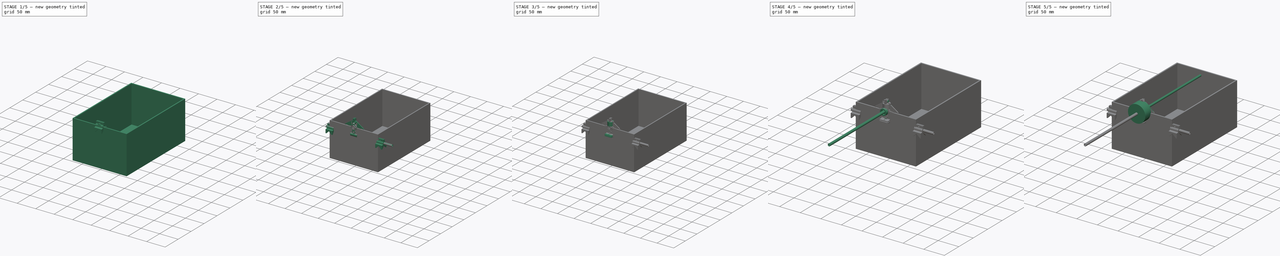
[diagram: build sequence overview — one tinted view per stage of 5, left to right]
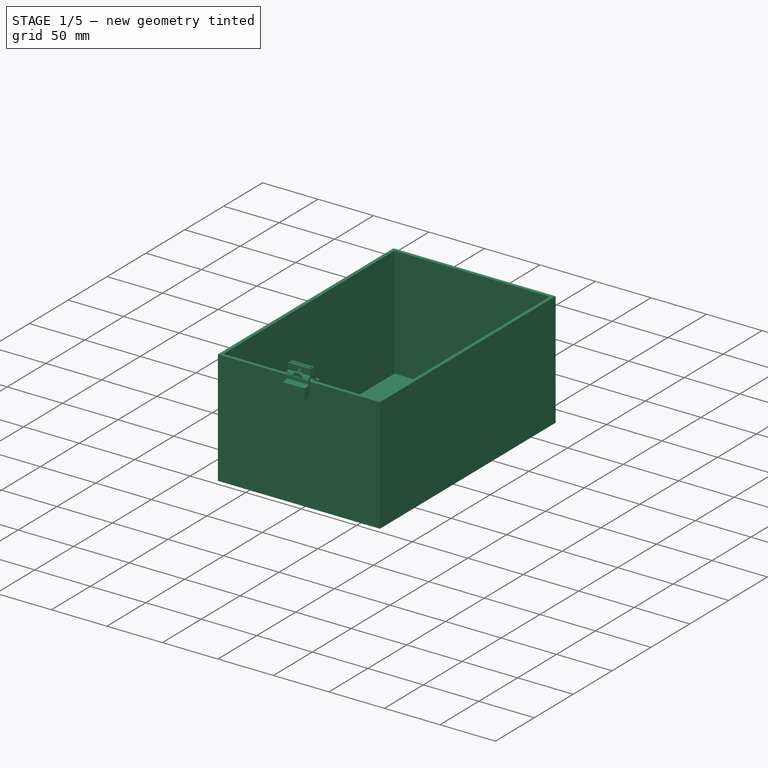
[diagram: stage 1 of 5 — iso view after this stage's code; geometry added in this stage tinted green]
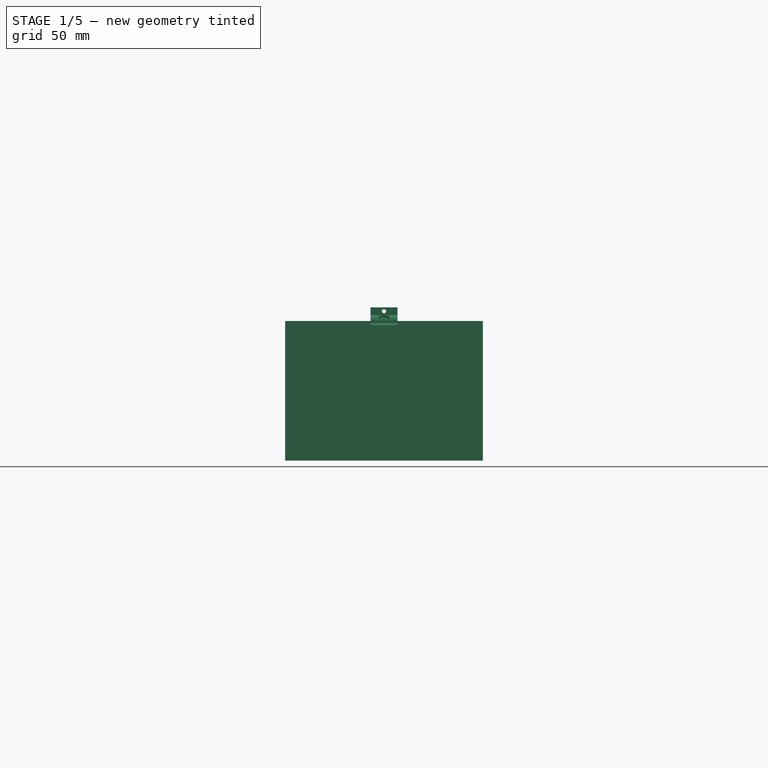
[diagram: stage 1 of 5 — front view after this stage's code; geometry added in this stage tinted green]
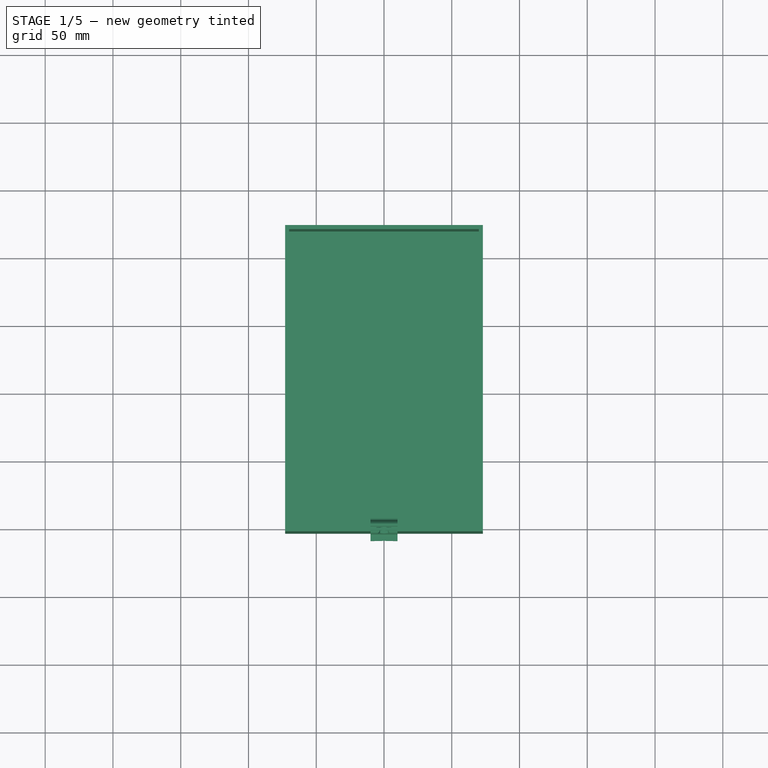
[diagram: stage 1 of 5 — top view after this stage's code; geometry added in this stage tinted green]
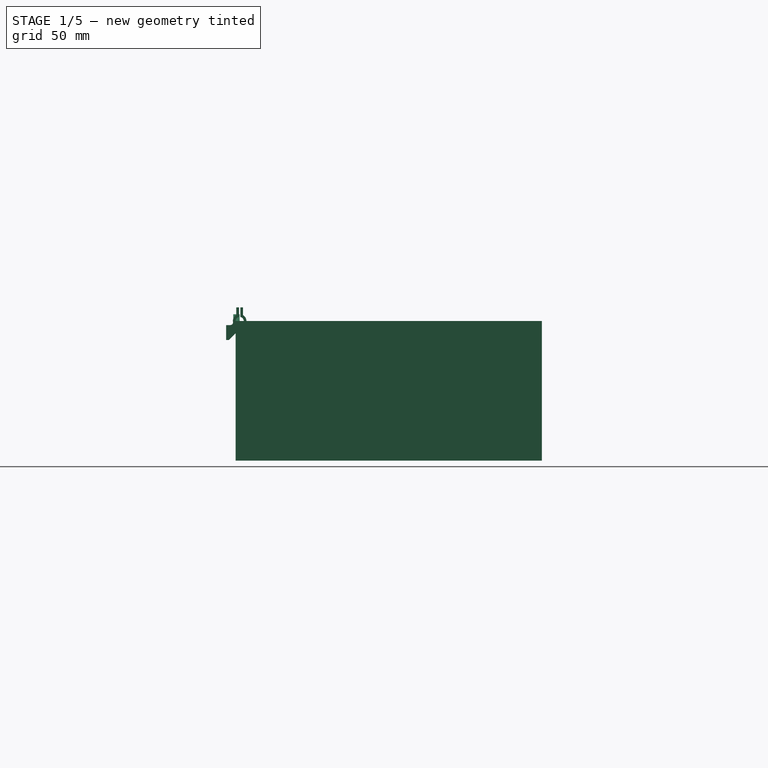
[diagram: stage 1 of 5 — right view after this stage's code; geometry added in this stage tinted green]
FCSTD DOCUMENT  (FreeCAD 0.19R24291 (Git))
Label: EL-axis v3
License: All rights reserved
LicenseURL: http://en.wikipedia.org/wiki/All_rights_reserved
objects: Sketcher::SketchObject×35, PartDesign::Body×25, PartDesign::Pad×18, PartDesign::FeatureBase×16, PartDesign::Pocket×15, App::Part×5, PartDesign::Fillet×5, Part::FeaturePython×4, PartDesign::Revolution×3, Part::Part2DObjectPython×2
note: 164 computed .brp shape members not serialized (recipe doc carries the construction recipe); baked Part::Feature solids carry a one-line shape summary decoded from their .brp

FEATURE [Part::FeaturePython] Nut  label="M6-Nut"  # Fasteners workbench fastener (typed FeaturePython)
  Placement = pos=(0,0,0) rot=(1,0,0;1.5708rad)
  diameter = 8
  invert = false
  matchOuter = false
  offset = 0
  thread = false
  type = 4
FEATURE [PartDesign::Body] Body034  label="bd_pipe_leg_front"
  BaseFeature = -> Body013
  Group = -> [Clone020]
  Origin = -> Origin043
  Placement = pos=(-96.5,-1.7e-14,-20.5) rot=(0,0,1;1.5708rad)
  Tip = -> Clone020
FEATURE [Sketcher::SketchObject] Sketch039
  FullyConstrained = false
  MapMode = 5
  Placement = pos=(0,0,0) rot=(0.57735,0.57735,0.57735;2.0944rad)
  Support = -> [YZ_Plane042]
  sketch-geometry (9):
    g0: ArcOfCircle CenterX=0 CenterY=0 CenterZ=0 NormalX=0 NormalY=0 NormalZ=1 AngleXU=0 Radius=3 StartAngle=1.73824 EndAngle=7.68653
    g1: ArcOfCircle CenterX=0 CenterY=0 CenterZ=0 NormalX=0 NormalY=0 NormalZ=1 AngleXU=0 Radius=5 StartAngle=2.0944 EndAngle=7.33038
    g2: LineSegment StartX=2.43076 StartY=-1.75824 StartZ=0 EndX=4.05127 EndY=-2.9304 EndZ=0
    g3: LineSegment StartX=-2.5 StartY=10.0304 StartZ=0 EndX=-0.5 EndY=10.0304 EndZ=0
    g4: LineSegment StartX=-0.5 StartY=10.0304 StartZ=0 EndX=-0.5 EndY=2.95804 EndZ=0
    g5: LineSegment StartX=-2.5 StartY=4.33013 StartZ=0 EndX=-2.5 EndY=10.0304 EndZ=0
    g6: LineSegment StartX=0.5 StartY=10.0304 StartZ=0 EndX=2.5 EndY=10.0304 EndZ=0
    g7: LineSegment StartX=2.5 StartY=10.0304 StartZ=0 EndX=2.5 EndY=4.33013 EndZ=0
    g8: LineSegment StartX=0.5 StartY=2.95804 StartZ=0 EndX=0.5 EndY=10.0304 EndZ=0
  constraints (25):
    c: Coincident(g0,g-1)
    c: Coincident(g1,g0)
    c: Diameter(g0) = 6
    c: PointOnObject(g2,g0)
    c: PointOnObject(g2,g1)
    c: PointOnObject(g0,g2)
    c: Distance(g2) = 2
    c: Coincident(g3,g4)
    c: Coincident(g5,g3)
    c: Horizontal(g3)
    c: Vertical(g4)
    c: Vertical(g5)
    c: Coincident(g6,g7)
    c: Coincident(g8,g6)
    c: Horizontal(g6)
    c: Vertical(g7)
    c: Vertical(g8)
    c: Equal(g3,g6)
    c: DistanceX(g3,g3) = 2
    c: DistanceX(g3,g6) = 1
    c: Symmetric(g3,g6,g-2)
    c: Coincident(g4,g0)
    c: Coincident(g5,g1)
    c: Coincident(g7,g1)
    c: Coincident(g8,g0)
FEATURE [PartDesign::Pad] Pad020
  Direction = (1,1,1)
  Length = 20
  Length2 = 100
  Midplane = true
  Placement = pos=(0,0,0) rot=(0.57735,0.57735,0.57735;2.0944rad)
  Profile = -> Sketch039
  Type = 0
FEATURE [Sketcher::SketchObject] Sketch040
  ExternalGeometry = -> [Pad020]
  FullyConstrained = false
  MapMode = 5
  Placement = pos=(0,0,0) rot=(1,0,0;1.5708rad)
  Support = -> [XZ_Plane042]
  sketch-geometry (2):
    g0: Circle CenterX=0 CenterY=7.18028 CenterZ=0 NormalX=0 NormalY=0 NormalZ=1 AngleXU=0 Radius=1.5
    g1: LineSegment StartX=-10 StartY=4.33013 StartZ=0 EndX=10 EndY=10.0304 EndZ=0
  constraints (5):
    c: PointOnObject(g0,g-2)
    c: Diameter(g0) = 3
    c: Coincident(g1,g-3)
    c: Coincident(g1,g-4)
    c: PointOnObject(g0,g1)
FEATURE [PartDesign::Pocket] Pocket018
  BaseFeature = -> Pad020
  Length = 10
  Length2 = 100
  Midplane = true
  Placement = pos=(0,0,0) rot=(0.57735,0.57735,0.57735;2.0944rad)
  Profile = -> Sketch040
  Type = 0
FEATURE [Sketcher::SketchObject] Sketch041
  ExternalGeometry = -> [Pocket018]
  FullyConstrained = false
  MapMode = 5
  Placement = pos=(0,0,0) rot=(0.57735,0.57735,0.57735;2.0944rad)
  Support = -> [YZ_Plane042]
  sketch-geometry (7):
    g0: LineSegment StartX=-10 StartY=-3 StartZ=0 EndX=10 EndY=-3 EndZ=0
    g1: LineSegment StartX=10 StartY=-3 StartZ=0 EndX=10 EndY=-16 EndZ=0
    g2: LineSegment StartX=-10 StartY=-16 StartZ=0 EndX=-10 EndY=-3 EndZ=0
    g3: LineSegment StartX=0 StartY=-6 StartZ=0 EndX=-10 EndY=-16 EndZ=0
    g4: LineSegment StartX=0 StartY=-6 StartZ=0 EndX=10 EndY=-16 EndZ=0
    g5: LineSegment StartX=-10 StartY=-16 StartZ=0 EndX=0 EndY=-6 EndZ=0
    g6: LineSegment StartX=0 StartY=-6 StartZ=0 EndX=10 EndY=-16 EndZ=0
  constraints (18):
    c: Coincident(g0,g1)
    c: Coincident(g2,g0)
    c: Vertical(g1)
    c: Vertical(g2)
    c: DistanceX(g0,g0) = 20
    c: Symmetric(g0,g0,g-2)
    c: Tangent(g0,g-3)
    c: Coincident(g4,g3)
    c: Symmetric(g3,g4,g-2)
    c: Angle(g3,g4) = 1.5708
    c: Coincident(g5,g3)
    c: Coincident(g5,g3)
    c: Coincident(g6,g5)
    c: Coincident(g6,g4)
    c: Coincident(g2,g3)
    c: PointOnObject(g1,g4)
    c: PointOnObject(g5,g-2)
    c: DistanceY(g5,g-1) = 6
FEATURE [PartDesign::Pad] Pad021
  BaseFeature = -> Pocket018
  Direction = (1,1,1)
  Length = 20
  Length2 = 100
  Midplane = true
  Placement = pos=(0,0,0) rot=(0.57735,0.57735,0.57735;2.0944rad)
  Profile = -> Sketch041
  Type = 0
FEATURE [Sketcher::SketchObject] Sketch042
  ExternalGeometry = -> [Pad021]
  FullyConstrained = false
  MapMode = 5
  Placement = pos=(0,0,0) rot=(1,0,0;1.5708rad)
  Support = -> [XZ_Plane042]
  sketch-geometry (7):
    g0: LineSegment StartX=0 StartY=-6 StartZ=0 EndX=-8 EndY=-14 EndZ=0
    g1: LineSegment StartX=-11.2699 StartY=-17.2699 StartZ=0 EndX=11.2699 EndY=-17.2699 EndZ=0
    g2: LineSegment StartX=8 StartY=-14 StartZ=0 EndX=0 EndY=-6 EndZ=0
    g3: LineSegment StartX=-11.2699 StartY=-17.2699 StartZ=0 EndX=-11.2699 EndY=-14 EndZ=0
    g4: LineSegment StartX=-11.2699 StartY=-14 StartZ=0 EndX=-8 EndY=-14 EndZ=0
    g5: LineSegment StartX=11.2699 StartY=-14 StartZ=0 EndX=11.2699 EndY=-17.2699 EndZ=0
    g6: LineSegment StartX=8 StartY=-14 StartZ=0 EndX=11.2699 EndY=-14 EndZ=0
  constraints (15):
    c: PointOnObject(g0,g-2)
    c: Coincident(g2,g0)
    c: PointOnObject(g0,g-3)
    c: Angle(g0,g2) = 1.5708
    c: Coincident(g3,g1)
    c: Vertical(g3)
    c: Coincident(g4,g3)
    c: Horizontal(g4)
    c: Coincident(g5,g6)
    c: Coincident(g5,g1)
    c: Vertical(g5)
    c: DistanceY(g-4,g3) = 2
    c: Coincident(g4,g0)
    c: Coincident(g6,g2)
    c: Tangent(g4,g6)
FEATURE [PartDesign::Pocket] Pocket019
  BaseFeature = -> Pad021
  Length = 22
  Length2 = 100
  Midplane = true
  Placement = pos=(0,0,0) rot=(0.57735,0.57735,0.57735;2.0944rad)
  Profile = -> Sketch042
  Type = 0
FEATURE [PartDesign::Fillet] Fillet001
  Base = -> Pocket019 [Edge70,Edge7]
  BaseFeature = -> Pocket019
  Placement = pos=(0,0,0) rot=(0.57735,0.57735,0.57735;2.0944rad)
  Radius = 2
  SupportTransform = false
FEATURE [PartDesign::Body] Body028  label="bd_bracket_rear"
  BaseFeature = -> Body027
  Group = -> [Clone017]
  Origin = -> Origin036
  Tip = -> Clone017
FEATURE [Sketcher::SketchObject] Sketch047
  ExternalGeometry = -> [Fillet001]
  FullyConstrained = false
  MapMode = 5
  Support = -> [XY_Plane042]
  sketch-geometry (4):
    g0: LineSegment StartX=-8 StartY=8 StartZ=0 EndX=8 EndY=8 EndZ=0
    g1: LineSegment StartX=8 StartY=8 StartZ=0 EndX=8 EndY=-8 EndZ=0
    g2: LineSegment StartX=8 StartY=-8 StartZ=0 EndX=-8 EndY=-8 EndZ=0
    g3: LineSegment StartX=-8 StartY=-8 StartZ=0 EndX=-8 EndY=8 EndZ=0
  constraints (10):
    c: Coincident(g0,g1)
    c: Coincident(g1,g2)
    c: Coincident(g2,g3)
    c: Coincident(g3,g0)
    c: Horizontal(g2)
    c: Vertical(g1)
    c: Symmetric(g0,g0,g-2)
    c: Symmetric(g0,g2,g-1)
    c: DistanceY(g0,g-3) = 2
    c: DistanceX(g-3,g0) = 2
FEATURE [PartDesign::Pocket] Pocket022
  BaseFeature = -> Fillet001
  Length = 5
  Length2 = -20
  Placement = pos=(0,0,0) rot=(0.57735,0.57735,0.57735;2.0944rad)
  Profile = -> Sketch047
  Type = 4
FEATURE [PartDesign::Fillet] Fillet005
  Base = -> Pocket022 [Face42]
  BaseFeature = -> Pocket022
  Placement = pos=(0,0,0) rot=(0.57735,0.57735,0.57735;2.0944rad)
  Radius = 1
  SupportTransform = false
FEATURE [PartDesign::Body] Body038  label="bd_leg_rear"
  BaseFeature = -> Body035
  Group = -> [Clone023]
  Origin = -> Origin047
  Placement = pos=(-8,0,0) rot=(0,0,1;0rad)
  Tip = -> Clone023
FEATURE [App::Part] Part  label="bracket_rear"
  Group = -> [Body028,Body036,Body037,Body038]
  Origin = -> Origin044
  Placement = pos=(0,188,0) rot=(0,0,1;0rad)
FEATURE [Sketcher::SketchObject] Sketch048
  FullyConstrained = true
  MapMode = 5
  Support = -> [XY_Plane048]
  sketch-geometry (8):
    g0: LineSegment StartX=-70 StartY=0 StartZ=0 EndX=70 EndY=-2e-16 EndZ=0
    g1: LineSegment StartX=70 StartY=-2e-16 StartZ=0 EndX=70 EndY=220 EndZ=0
    g2: LineSegment StartX=70 StartY=220 StartZ=0 EndX=-70 EndY=220 EndZ=0
    g3: LineSegment StartX=-70 StartY=220 StartZ=0 EndX=-70 EndY=0 EndZ=0
    g4: LineSegment StartX=-73 StartY=-3 StartZ=0 EndX=73 EndY=-3 EndZ=0
    g5: LineSegment StartX=73 StartY=-3 StartZ=0 EndX=73 EndY=223 EndZ=0
    g6: LineSegment StartX=73 StartY=223 StartZ=0 EndX=-73 EndY=223 EndZ=0
    g7: LineSegment StartX=-73 StartY=223 StartZ=0 EndX=-73 EndY=-3 EndZ=0
  constraints (23):
    c: Coincident(g0,g1)
    c: Coincident(g1,g2)
    c: Coincident(g2,g3)
    c: Coincident(g3,g0)
    c: Horizontal(g2)
    c: Vertical(g1)
    c: Vertical(g3)
    c: PointOnObject(g0,g-1)
    c: Symmetric(g0,g0,g-2)
    c: DistanceX(g0,g0) = 140
    c: DistanceY(g3,g3) = 220
    c: Coincident(g4,g5)
    c: Coincident(g5,g6)
    c: Coincident(g6,g7)
    c: Coincident(g7,g4)
    c: Horizontal(g4)
    c: Horizontal(g6)
    c: Vertical(g5)
    c: Vertical(g7)
    c: DistanceX(g0,g4) = 3
    c: DistanceX(g4,g0) = 3
    c: DistanceY(g4,g0) = 3
    c: DistanceY(g1,g5) = 3
FEATURE [PartDesign::Pad] Pad
  Direction = (1,1,1)
  Length = 100
  Length2 = 100
  Profile = -> Sketch048
  Reversed = true
  Type = 0
FEATURE [Sketcher::SketchObject] Sketch049
  ExternalGeometry = -> [Pad]
  FullyConstrained = true
  MapMode = 5
  Placement = pos=(0,0,-100) rot=(1,0,0;3.14159rad)
  Support = -> [Pad]
  sketch-geometry (4):
    g0: LineSegment StartX=-73 StartY=3 StartZ=0 EndX=73 EndY=3 EndZ=0
    g1: LineSegment StartX=73 StartY=3 StartZ=0 EndX=73 EndY=-223 EndZ=0
    g2: LineSegment StartX=73 StartY=-223 StartZ=0 EndX=-73 EndY=-223 EndZ=0
    g3: LineSegment StartX=-73 StartY=-223 StartZ=0 EndX=-73 EndY=3 EndZ=0
  constraints (10):
    c: Coincident(g0,g1)
    c: Coincident(g1,g2)
    c: Coincident(g2,g3)
    c: Coincident(g3,g0)
    c: Horizontal(g0)
    c: Horizontal(g2)
    c: Vertical(g1)
    c: Vertical(g3)
    c: Coincident(g0,g-3)
    c: Coincident(g1,g-4)
FEATURE [PartDesign::Pad] Pad024
  BaseFeature = -> Pad
  Direction = (1,1,1)
  Length = 3
  Length2 = 100
  Profile = -> Sketch049
  Type = 0
FEATURE [PartDesign::Body] Body039  label="bd_tank"
  Group = -> [Sketch048,Pad,Sketch049,Pad024]
  Origin = -> Origin048
  Placement = pos=(0,8,-30) rot=(0,0,1;0rad)
  Tip = -> Pad024
FEATURE [PartDesign::FeatureBase] Clone024
  BaseFeature = -> Nut
  Placement = pos=(0,0,0) rot=(1,0,0;1.5708rad)
FEATURE [PartDesign::Body] Body040  label="bd_nut_car_front"
  BaseFeature = -> Nut
  Group = -> [Clone024]
  Origin = -> Origin049
  Placement = pos=(0,-9,0) rot=(0,0,1;0rad)
  Tip = -> Clone024
FEATURE [PartDesign::FeatureBase] Clone025
  BaseFeature = -> Nut
  Placement = pos=(0,0,0) rot=(1,0,0;1.5708rad)
FEATURE [PartDesign::Body] Body041  label="bd_nut_car_rear"
  BaseFeature = -> Nut
  Group = -> [Clone025]
  Origin = -> Origin050
  Placement = pos=(0,14,0) rot=(0,0,1;0rad)
  Tip = -> Clone025
FEATURE [App::Part] Part008  label="carriage_v3"
  Group = -> [Body030,Body031,Body040,Body041]
  Origin = -> Origin038
  Placement = pos=(0,53,0) rot=(0,0,1;0rad)
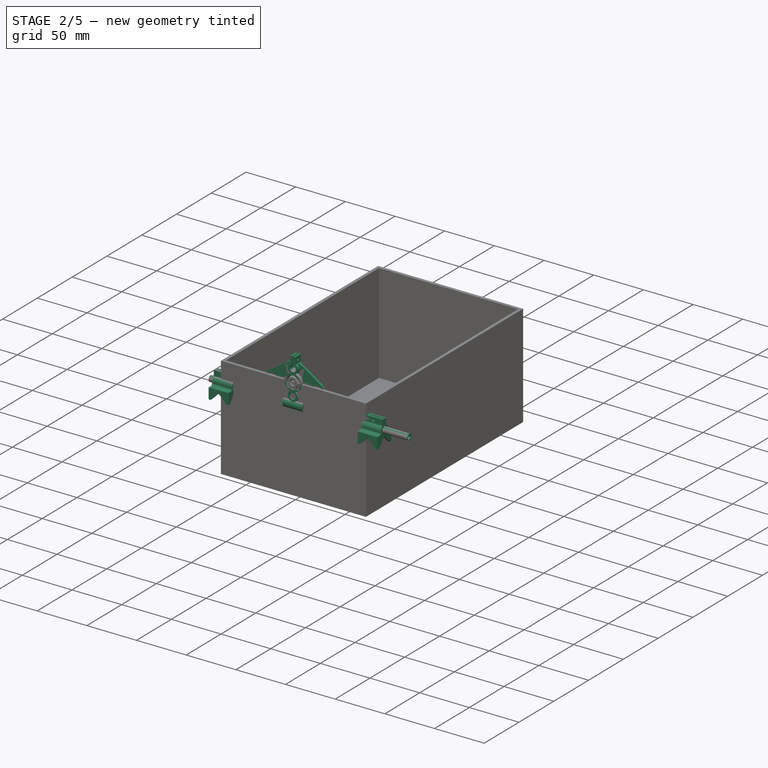
[diagram: stage 2 of 5 — iso view after this stage's code; geometry added in this stage tinted green]
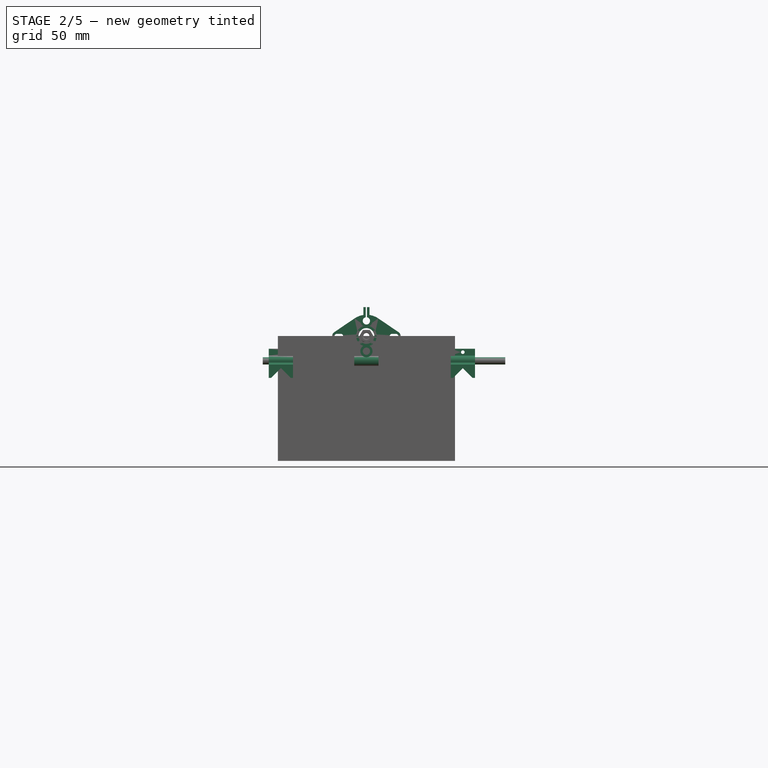
[diagram: stage 2 of 5 — front view after this stage's code; geometry added in this stage tinted green]
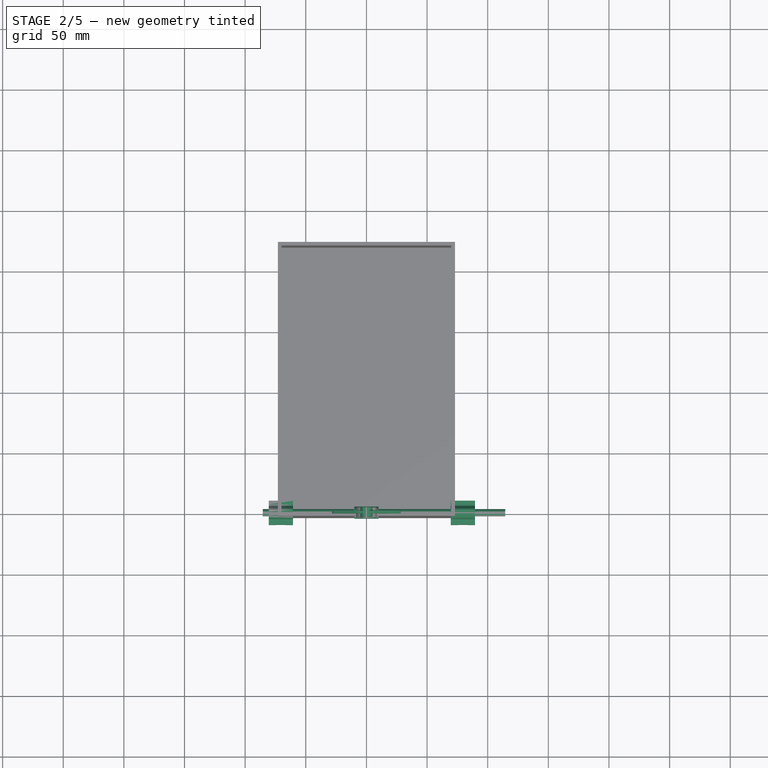
[diagram: stage 2 of 5 — top view after this stage's code; geometry added in this stage tinted green]
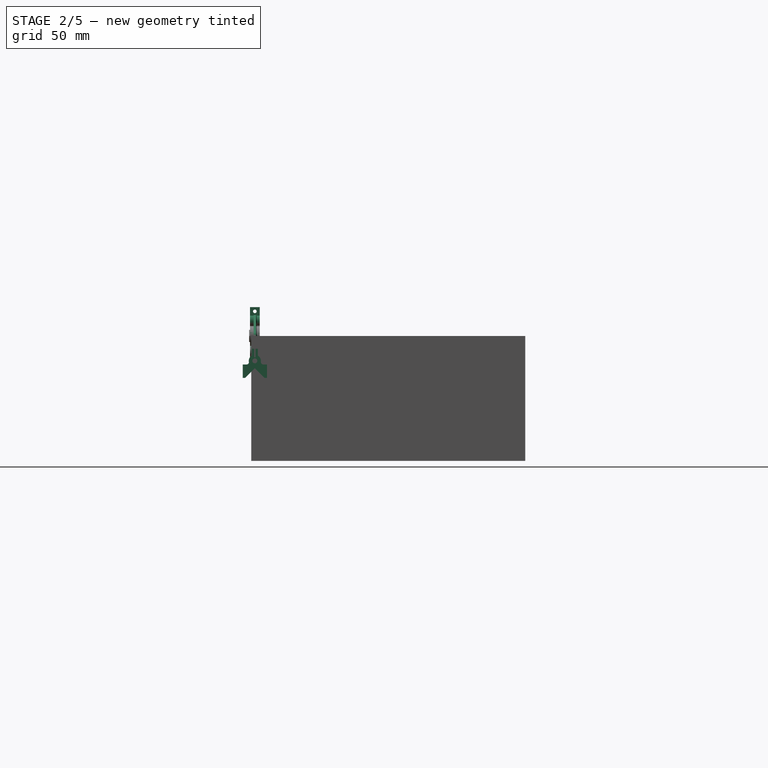
[diagram: stage 2 of 5 — right view after this stage's code; geometry added in this stage tinted green]
FEATURE [PartDesign::Body] Body009  label="bd_nut_rear_1"
  BaseFeature = -> Nut
  Group = -> [Clone008]
  Origin = -> Origin014
  Placement = pos=(0,190,0) rot=(0,0,1;0rad)
  Tip = -> Clone008
  expr: .Placement.Base.y = <<params>>.Constraints.length - 10mm
FEATURE [Sketcher::SketchObject] Sketch006
  FullyConstrained = false
  MapMode = 5
  Placement = pos=(0,0,0) rot=(1,0,0;1.5708rad)
  Support = -> [XZ_Plane018]
  sketch-geometry (2):
    g0: Circle CenterX=0 CenterY=0 CenterZ=0 NormalX=0 NormalY=0 NormalZ=1 AngleXU=0 Radius=2.025
    g1: Circle CenterX=0 CenterY=0 CenterZ=0 NormalX=0 NormalY=0 NormalZ=1 AngleXU=0 Radius=3
  constraints (4):
    c: Coincident(g0,g-1)
    c: Coincident(g1,g0)
    c: Diameter(g1) = 6
    c: Diameter(g0) = 4.05
FEATURE [PartDesign::Pad] Pad002
  Direction = (1,1,1)
  Length = 200
  Length2 = 100
  Placement = pos=(0,0,0) rot=(1,0,0;1.5708rad)
  Profile = -> Sketch006
  Type = 0
FEATURE [PartDesign::Body] Body024  label="motor_B"
  Group = -> [Sketch020,Revolution002,Sketch019,Pad011]
  Placement = pos=(0,-15,0.01) rot=(0,1,0;0rad)
  Tip = -> Pad011
FEATURE [App::Part] Part003  label="parts"
  Group = -> [Body,Nut,ScrewTap,Body013,Body023,Body024,Body025]
  Origin = -> Origin009
FEATURE [Sketcher::SketchObject] Sketch022
  FullyConstrained = false
  MapMode = 5
  Placement = pos=(0,0,0) rot=(1,0,0;1.5708rad)
  Support = -> [XZ_Plane035]
  sketch-geometry (30):
    g0: Circle CenterX=0 CenterY=0 CenterZ=0 NormalX=0 NormalY=0 NormalZ=1 AngleXU=0 Radius=17.5
    g1: Circle CenterX=0 CenterY=12.5 CenterZ=0 NormalX=0 NormalY=0 NormalZ=1 AngleXU=0 Radius=3
    g2: Circle CenterX=0 CenterY=-12.5 CenterZ=0 NormalX=0 NormalY=0 NormalZ=1 AngleXU=0 Radius=3
    g3: Circle CenterX=0 CenterY=12.5 CenterZ=0 NormalX=0 NormalY=0 NormalZ=1 AngleXU=0 Radius=5
    g4: Circle CenterX=0 CenterY=-12.5 CenterZ=0 NormalX=0 NormalY=0 NormalZ=1 AngleXU=0 Radius=5
    g5: LineSegment StartX=2.47164 StartY=14.2003 StartZ=0 EndX=4.1194 EndY=15.3338 EndZ=0
    g6: Circle CenterX=0 CenterY=0 CenterZ=0 NormalX=0 NormalY=0 NormalZ=1 AngleXU=0 Radius=6.5
    g7: LineSegment StartX=-29.1816 StartY=-17.5 StartZ=0 EndX=28.5708 EndY=-17.5 EndZ=0
    g8: LineSegment StartX=28.5708 StartY=-17.5 StartZ=0 EndX=28.5708 EndY=-23.5 EndZ=0
    g9: LineSegment StartX=28.5708 StartY=-23.5 StartZ=0 EndX=-29.1816 EndY=-23.5 EndZ=0
    g10: LineSegment StartX=-29.1816 StartY=-23.5 StartZ=0 EndX=-29.1816 EndY=-17.5 EndZ=0
    g11: ArcOfCircle CenterX=-24.5 CenterY=0 CenterZ=0 NormalX=0 NormalY=0 NormalZ=1 AngleXU=0 Radius=1.75 StartAngle=1.5708 EndAngle=4.71239
    g12: ArcOfCircle CenterX=-21 CenterY=-1e-16 CenterZ=0 NormalX=0 NormalY=0 NormalZ=1 AngleXU=0 Radius=1.75 StartAngle=4.71239 EndAngle=7.85398
    g13: LineSegment StartX=-24.5 StartY=-1.75 StartZ=0 EndX=-21 EndY=-1.75 EndZ=0
    g14: LineSegment StartX=-24.5 StartY=1.75 StartZ=0 EndX=-21 EndY=1.75 EndZ=0
    g15: ArcOfCircle CenterX=21 CenterY=-1e-16 CenterZ=0 NormalX=0 NormalY=0 NormalZ=1 AngleXU=0 Radius=1.75 StartAngle=1.5708 EndAngle=4.71239
    g16: ArcOfCircle CenterX=24.5 CenterY=0 CenterZ=0 NormalX=0 NormalY=0 NormalZ=1 AngleXU=0 Radius=1.75 StartAngle=4.71239 EndAngle=7.85398
    g17: LineSegment StartX=21 StartY=-1.75 StartZ=0 EndX=24.5 EndY=-1.75 EndZ=0
    g18: LineSegment StartX=21 StartY=1.75 StartZ=0 EndX=24.5 EndY=1.75 EndZ=0
    g19: ArcOfCircle CenterX=-24.5 CenterY=0 CenterZ=0 NormalX=0 NormalY=0 NormalZ=1 AngleXU=0 Radius=3.75 StartAngle=2.16666 EndAngle=4.11652
    g20: ArcOfCircle CenterX=24.5 CenterY=0 CenterZ=0 NormalX=0 NormalY=0 NormalZ=1 AngleXU=0 Radius=3.75 StartAngle=5.30825 EndAngle=7.25812
    g21: ArcOfCircle CenterX=0 CenterY=0 CenterZ=0 NormalX=0 NormalY=0 NormalZ=1 AngleXU=0 Radius=17.5 StartAngle=0.974932 EndAngle=2.16666
    g22: LineSegment StartX=-26.6046 StartY=3.10374 StartZ=0 EndX=-9.82143 EndY=14.4841 EndZ=0
    g23: LineSegment StartX=9.82143 StartY=14.4841 StartZ=0 EndX=26.6046 EndY=3.10374 EndZ=0
    g24: LineSegment StartX=-27.4499 StartY=2.31531 StartZ=0 EndX=-25.8766 EndY=1.08048 EndZ=0
    g25: LineSegment StartX=-26.6046 StartY=-3.10374 StartZ=0 EndX=-9.82143 EndY=-14.4841 EndZ=0
    g26: LineSegment StartX=9.82143 StartY=-14.4841 StartZ=0 EndX=26.6046 EndY=-3.10374 EndZ=0
    g27: LineSegment StartX=-9.82143 StartY=-14.4841 StartZ=0 EndX=-9.82143 EndY=-17.5 EndZ=0
    g28: LineSegment StartX=-9.82143 StartY=-17.5 StartZ=0 EndX=9.82143 EndY=-17.5 EndZ=0
    g29: LineSegment StartX=9.82143 StartY=-17.5 StartZ=0 EndX=9.82143 EndY=-14.4841 EndZ=0
  constraints (73):
    c: Coincident(g0,g-1)
    c: Diameter(g0) = 35
    c: PointOnObject(g1,g-2)
    c: PointOnObject(g2,g-2)
    c: Coincident(g3,g1)
    c: Coincident(g4,g2)
    c: Equal(g4,g3)
    c: Equal(g1,g2)
    c: PointOnObject(g5,g1)
    c: PointOnObject(g5,g3)
    c: PointOnObject(g1,g5)
    c: Distance(g5) = 2
    c: Diameter(g1) = 6
    c: Tangent(g3,g0)
    c: Tangent(g4,g0)
    c: Coincident(g6,g-1)
    c: Diameter(g6) = 13
    c: Coincident(g7,g8)
    c: Coincident(g8,g9)
    c: Coincident(g9,g10)
    c: Coincident(g10,g7)
    c: Horizontal(g7)
    c: Horizontal(g9)
    c: Vertical(g8)
    c: Vertical(g10)
    c: DistanceY(g8,g8) = 6
    c: Tangent(g7,g0)
    c: Tangent(g11,g14)
    c: Tangent(g11,g13)
    c: Tangent(g13,g12)
    c: Tangent(g14,g12)
    c: Horizontal(g13)
    c: Equal(g11,g12)
    c: PointOnObject(g11,g-1)
    c: Tangent(g15,g18)
    c: Tangent(g15,g17)
    c: Tangent(g17,g16)
    c: Tangent(g18,g16)
    c: Horizontal(g17)
    c: Equal(g12,g15)
    c: Diameter(g16) = 3.5
    c: DistanceX(g11,g16) = 49
    c: DistanceX(g12,g15) = 42
    c: Symmetric(g12,g15,g-2)
    c: Symmetric(g11,g16,g-2)
    c: Coincident(g19,g11)
    c: Coincident(g20,g16)
    c: Coincident(g21,g6)
    c: PointOnObject(g21,g0)
    c: Tangent(g22,g19) = 1.5708
    c: Tangent(g22,g21) = 1.5708
    c: Tangent(g23,g21) = 1.5708
    c: Tangent(g23,g20) = 1.5708
    c: PointOnObject(g24,g19)
    c: PointOnObject(g24,g11)
    c: PointOnObject(g11,g24)
    c: Equal(g24,g5)
    c: Equal(g19,g20)
    c: PointOnObject(g25,g0)
    c: Tangent(g25,g0)
    c: PointOnObject(g26,g0)
    c: Tangent(g26,g20) = -1.5708
    c: Tangent(g26,g0)
    c: Coincident(g27,g25)
    c: PointOnObject(g27,g7)
    c: Vertical(g27)
    c: Coincident(g28,g27)
    c: Horizontal(g28)
    c: Coincident(g29,g28)
    c: Coincident(g29,g26)
    c: Vertical(g29)
    c: Tangent(g25,g19) = -1.5708
    c: DistanceY(g6,g1) = 12.5  'entraxe'
FEATURE [PartDesign::Pad] Pad012
  Direction = (1,1,1)
  Length = 2
  Length2 = 100
  Midplane = true
  Placement = pos=(0,0,0) rot=(1,0,0;1.5708rad)
  Profile = -> Sketch022
  Type = 0
FEATURE [Sketcher::SketchObject] Sketch023
  ExternalGeometry = -> [Pad012]
  FullyConstrained = false
  MapMode = 5
  Placement = pos=(0,0,0) rot=(1,0,0;1.5708rad)
  Support = -> [XZ_Plane035]
  sketch-geometry (14):
    g0: ArcOfCircle CenterX=0 CenterY=12.5 CenterZ=0 NormalX=0 NormalY=0 NormalZ=1 AngleXU=0 Radius=5 StartAngle=5.22391 EndAngle=7.33038
    g1: ArcOfCircle CenterX=0 CenterY=0 CenterZ=0 NormalX=0 NormalY=0 NormalZ=1 AngleXU=0 Radius=8.5 StartAngle=5.00447 EndAngle=7.5619
    g2: ArcOfCircle CenterX=0 CenterY=-12.5 CenterZ=0 NormalX=0 NormalY=0 NormalZ=1 AngleXU=0 Radius=5 StartAngle=2.08232 EndAngle=7.34246
    g3: Circle CenterX=0 CenterY=12.5 CenterZ=0 NormalX=0 NormalY=0 NormalZ=1 AngleXU=0 Radius=3
    g4: Circle CenterX=0 CenterY=0 CenterZ=0 NormalX=0 NormalY=0 NormalZ=1 AngleXU=0 Radius=6.5
    g5: Circle CenterX=0 CenterY=-12.5 CenterZ=0 NormalX=0 NormalY=0 NormalZ=1 AngleXU=0 Radius=3
    g6: LineSegment StartX=5.98583 StartY=2.53374 StartZ=0 EndX=7.82763 EndY=3.31335 EndZ=0
    g7: LineSegment StartX=2.99659 StartY=12.643 StartZ=0 EndX=4.99432 EndY=12.7384 EndZ=0
    g8: LineSegment StartX=2.78567 StartY=-13.6136 StartZ=0 EndX=4.64278 EndY=-14.356 EndZ=0
    g9: ArcOfCircle CenterX=0 CenterY=0 CenterZ=0 NormalX=0 NormalY=0 NormalZ=1 AngleXU=0 Radius=8.5 StartAngle=1.86288 EndAngle=4.42031
    g10: LineSegment StartX=2.5 StartY=16.8301 StartZ=0 EndX=2.5 EndY=23.8301 EndZ=0
    g11: LineSegment StartX=2.5 StartY=23.8301 StartZ=0 EndX=-2.5 EndY=23.8301 EndZ=0
    g12: LineSegment StartX=-2.5 StartY=23.8301 StartZ=0 EndX=-2.5 EndY=16.8301 EndZ=0
    g13: ArcOfCircle CenterX=0 CenterY=12.5 CenterZ=0 NormalX=0 NormalY=0 NormalZ=1 AngleXU=0 Radius=5 StartAngle=2.0944 EndAngle=4.20087
  constraints (37):
    c: Coincident(g0,g-3)
    c: Coincident(g1,g-1)
    c: Coincident(g2,g-5)
    c: Coincident(g3,g0)
    c: Coincident(g4,g1)
    c: Coincident(g5,g2)
    c: Equal(g5,g-5)
    c: Equal(g4,g-4)
    c: Equal(g3,g-3)
    c: PointOnObject(g6,g4)
    c: PointOnObject(g6,g1)
    c: PointOnObject(g7,g3)
    c: PointOnObject(g7,g0)
    c: PointOnObject(g8,g5)
    c: PointOnObject(g8,g2)
    c: PointOnObject(g2,g8)
    c: PointOnObject(g1,g6)
    c: PointOnObject(g0,g7)
    c: Equal(g7,g6)
    c: Equal(g6,g8)
    c: Distance(g7) = 2
    c: Coincident(g1,g2)
    c: Coincident(g9,g2)
    c: Equal(g1,g9)
    c: Coincident(g1,g9)
    c: Coincident(g0,g1)
    c: Coincident(g13,g9)
    c: Coincident(g10,g11)
    c: Coincident(g11,g12)
    c: Vertical(g10)
    c: Vertical(g12)
    c: Symmetric(g11,g10,g-2)
    c: DistanceX(g11,g11) = 5
    c: DistanceY(g10,g10) = 7
    c: Equal(g0,g13)
    c: PointOnObject(g0,g10)
    c: Coincident(g0,g13)
FEATURE [PartDesign::Pad] Pad013
  BaseFeature = -> Pad012
  Direction = (1,1,1)
  Length = 8
  Length2 = 100
  Midplane = true
  Placement = pos=(0,0,0) rot=(1,0,0;1.5708rad)
  Profile = -> Sketch023
  Type = 0
FEATURE [Sketcher::SketchObject] Sketch024
  ExternalGeometry = -> [Pad013]
  FullyConstrained = false
  MapMode = 5
  Placement = pos=(0,0,0) rot=(0.57735,0.57735,0.57735;2.0944rad)
  Support = -> [YZ_Plane035]
  sketch-geometry (3):
    g0: Circle CenterX=0 CenterY=-20.5 CenterZ=0 NormalX=0 NormalY=0 NormalZ=1 AngleXU=0 Radius=3
    g1: Circle CenterX=0 CenterY=-20.5 CenterZ=0 NormalX=0 NormalY=0 NormalZ=1 AngleXU=0 Radius=5
    g2: LineSegment StartX=2.79143 StartY=-21.5991 StartZ=0 EndX=4.65238 EndY=-22.3318 EndZ=0
  constraints (8):
    c: PointOnObject(g0,g-2)
    c: Coincident(g1,g0)
    c: Diameter(g0) = 6
    c: PointOnObject(g2,g0)
    c: PointOnObject(g2,g1)
    c: PointOnObject(g0,g2)
    c: Distance(g2) = 2
    c: Tangent(g0,g-3)
FEATURE [PartDesign::Pad] Pad014
  BaseFeature = -> Pad013
  Direction = (1,1,1)
  Length = 20
  Length2 = 100
  Midplane = true
  Placement = pos=(0,0,0) rot=(1,0,0;1.5708rad)
  Profile = -> Sketch024
  Type = 0
FEATURE [Sketcher::SketchObject] Sketch025
  ExternalGeometry = -> [Pad014]
  FullyConstrained = false
  MapMode = 5
  Placement = pos=(0,0,0) rot=(0.57735,0.57735,0.57735;2.0944rad)
  Support = -> [YZ_Plane035]
  sketch-geometry (2):
    g0: Circle CenterX=0 CenterY=20.3301 CenterZ=0 NormalX=0 NormalY=0 NormalZ=1 AngleXU=0 Radius=1.5
    g1: LineSegment StartX=-4 StartY=16.8301 StartZ=0 EndX=4 EndY=23.8301 EndZ=0
  constraints (5):
    c: PointOnObject(g0,g-2)
    c: Diameter(g0) = 3
    c: Coincident(g1,g-3)
    c: Coincident(g1,g-4)
    c: PointOnObject(g0,g1)
FEATURE [PartDesign::Pocket] Pocket008
  BaseFeature = -> Pad014
  Length = 10
  Length2 = 100
  Midplane = true
  Placement = pos=(0,0,0) rot=(1,0,0;1.5708rad)
  Profile = -> Sketch025
  Type = 0
FEATURE [Sketcher::SketchObject] Sketch026
  FullyConstrained = false
  MapMode = 5
  Placement = pos=(0,0,0) rot=(1,0,0;1.5708rad)
  Support = -> [XZ_Plane035]
  sketch-geometry (4):
    g0: LineSegment StartX=-0.5 StartY=26.7164 StartZ=0 EndX=0.5 EndY=26.7164 EndZ=0
    g1: LineSegment StartX=0.5 StartY=26.7164 StartZ=0 EndX=0.5 EndY=13.0579 EndZ=0
    g2: LineSegment StartX=0.5 StartY=13.0579 StartZ=0 EndX=-0.5 EndY=13.0579 EndZ=0
    g3: LineSegment StartX=-0.5 StartY=13.0579 StartZ=0 EndX=-0.5 EndY=26.7164 EndZ=0
  constraints (9):
    c: Coincident(g0,g1)
    c: Coincident(g1,g2)
    c: Coincident(g2,g3)
    c: Coincident(g3,g0)
    c: Horizontal(g0)
    c: Vertical(g1)
    c: Vertical(g3)
    c: Symmetric(g2,g1,g-2)
    c: DistanceX(g0,g0) = 1
FEATURE [PartDesign::Pocket] Pocket009
  BaseFeature = -> Pocket008
  Length = 10
  Length2 = 100
  Midplane = true
  Placement = pos=(0,0,0) rot=(1,0,0;1.5708rad)
  Profile = -> Sketch026
  Type = 0
FEATURE [PartDesign::Body] Body032  label="bd_socket"
  BaseFeature = -> Nut003
  Group = -> [BaseFeature,Sketch037,Pad019,InvoluteGear002,Pocket016,Sketch038,Pocket017]
  Origin = -> Origin041
  Placement = pos=(0,5,1e-15) rot=(1,0,0;1.5708rad)
  Tip = -> Pocket017
FEATURE [App::Part] Part002  label="threaded_rod"
  Group = -> [Body002,Body004,Body005,Body006,Body009,Body032]
  Origin = -> Origin005
  Placement = pos=(0,-2,0) rot=(0,0,1;0rad)
FEATURE [PartDesign::FeatureBase] Clone020
  BaseFeature = -> Body013
FEATURE [PartDesign::Fillet] Fillet002
  Base = -> Pocket009 [Edge12,Edge10,Edge11,Edge48,Edge9,Edge112,Edge111,Edge110,Edge52,Edge54,Edge123,Edge122]
  BaseFeature = -> Pocket009
  Placement = pos=(0,0,0) rot=(1,0,0;1.5708rad)
  Radius = 1
  SupportTransform = false
FEATURE [PartDesign::Body] Body033  label="bd_foot_front_left"
  Group = -> [Sketch039,Pad020,Sketch040,Pocket018,Sketch041,Pad021,Sketch042,Pocket019,Fillet001,Sketch047,Pocket022,Fillet005]
  Origin = -> Origin042
  Placement = pos=(-70.5,0,-20.5) rot=(0,0,1;0rad)
  Tip = -> Fillet005
FEATURE [PartDesign::FeatureBase] Clone
  BaseFeature = -> Body033
  Placement = pos=(-70.5,0,-20.5) rot=(0,0,1;0rad)
FEATURE [PartDesign::Body] Body035  label="bd_foot_front_right"
  BaseFeature = -> Body033
  Group = -> [Clone]
  Origin = -> Origin
  Placement = pos=(143,0,0) rot=(0,0,1;0rad)
  Tip = -> Clone
FEATURE [App::Part] Part007  label="bracket_front"
  Group = -> [Screw,Body029,Body033,Body034,Body035,Body027]
  Origin = -> Origin034
  Placement = pos=(0,8,0) rot=(0,0,1;0rad)
FEATURE [PartDesign::FeatureBase] Clone021
  BaseFeature = -> Body033
  Placement = pos=(-70.5,0,-20.5) rot=(0,0,1;0rad)
FEATURE [PartDesign::Body] Body036  label="bd_foot_rear_left"
  BaseFeature = -> Body033
  Group = -> [Clone021]
  Origin = -> Origin045
  Tip = -> Clone021
FEATURE [PartDesign::FeatureBase] Clone022
  BaseFeature = -> Body034
  Placement = pos=(-85.5,-1.9e-14,-20.5) rot=(0,0,1;1.5708rad)
FEATURE [PartDesign::Body] Body037  label="bd_foot_rear_right"
  BaseFeature = -> Body034
  Group = -> [Clone022]
  Origin = -> Origin046
  Placement = pos=(-12,0,0) rot=(0,0,1;0rad)
  Tip = -> Clone022
FEATURE [PartDesign::FeatureBase] Clone023
  BaseFeature = -> Body035
  Placement = pos=(150,0,0) rot=(0,0,1;0rad)
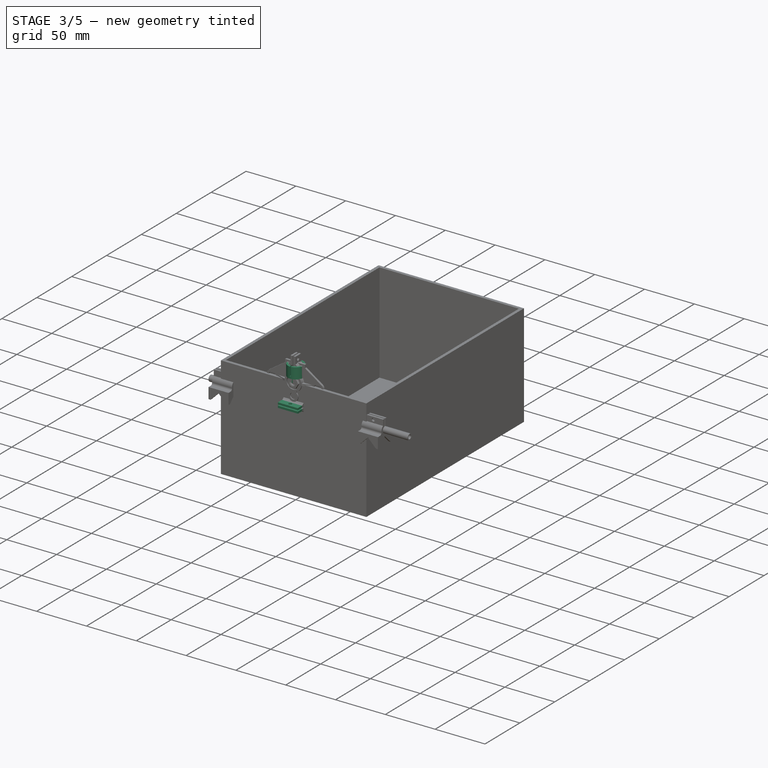
[diagram: stage 3 of 5 — iso view after this stage's code; geometry added in this stage tinted green]
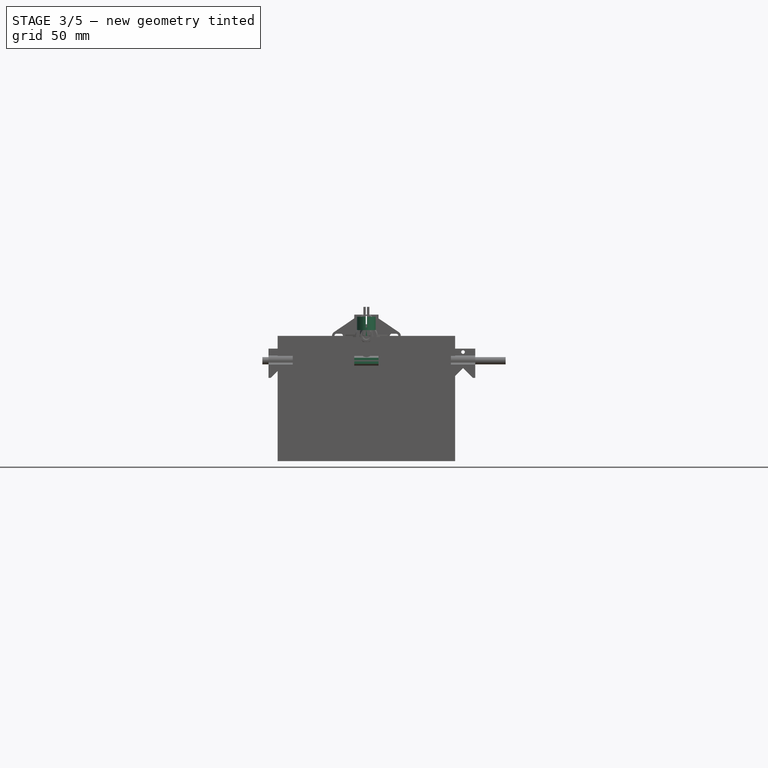
[diagram: stage 3 of 5 — front view after this stage's code; geometry added in this stage tinted green]
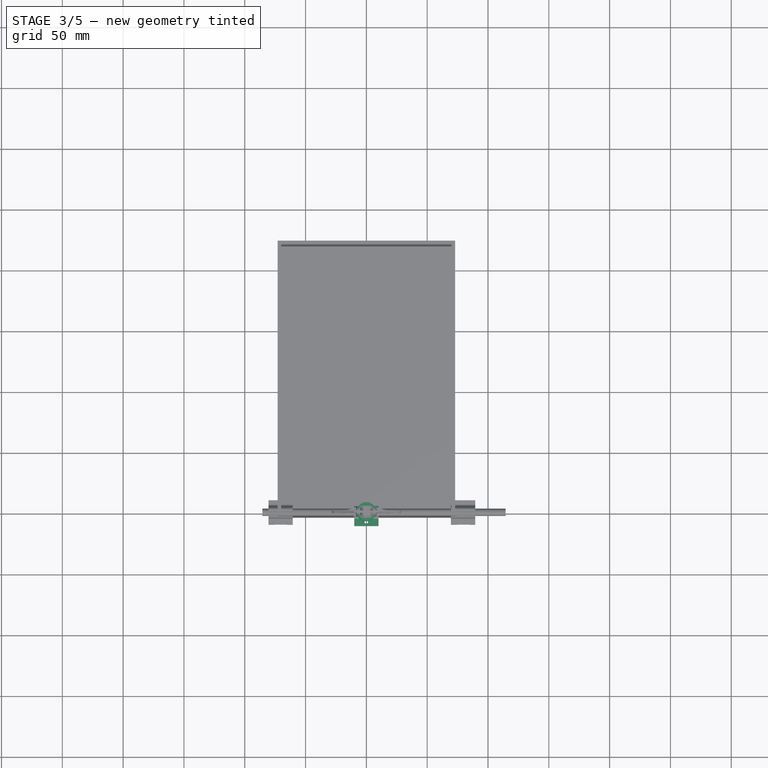
[diagram: stage 3 of 5 — top view after this stage's code; geometry added in this stage tinted green]
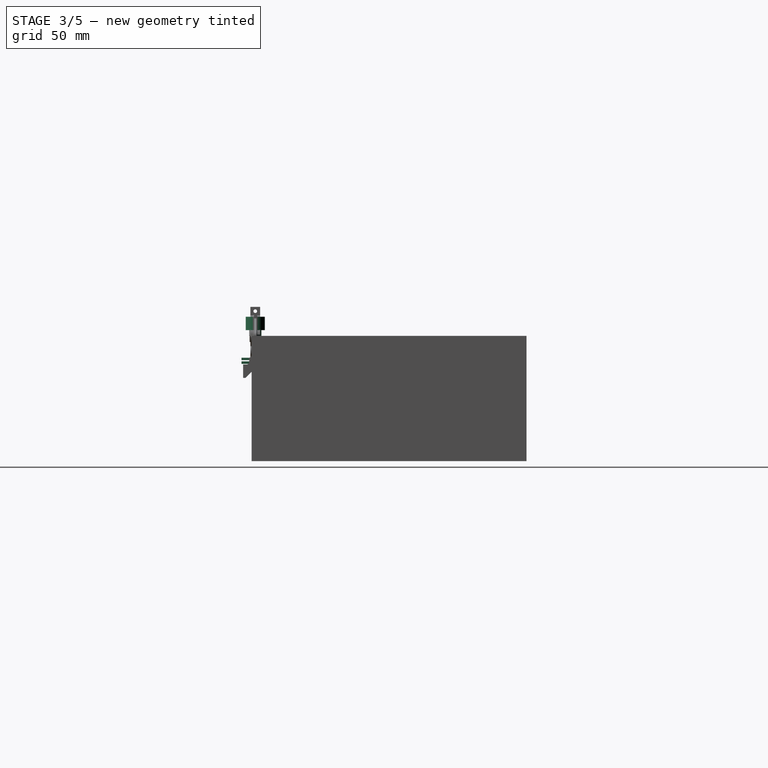
[diagram: stage 3 of 5 — right view after this stage's code; geometry added in this stage tinted green]
FEATURE [PartDesign::Body] Body029  label="bd_pipe_top"
  BaseFeature = -> Body013
  Group = -> [Clone018]
  Origin = -> Origin037
  Placement = pos=(0,191,12.5) rot=(0,0,1;0rad)
  Tip = -> Clone018
FEATURE [Sketcher::SketchObject] Sketch027
  FullyConstrained = false
  MapMode = 5
  Placement = pos=(0,0,0) rot=(1,0,0;1.5708rad)
  Support = -> [XZ_Plane039]
  expr: Constraints[30] = <<Sketch022>>.Constraints.entraxe
  sketch-geometry (20):
    g0: ArcOfCircle CenterX=0 CenterY=13.5 CenterZ=0 NormalX=0 NormalY=0 NormalZ=1 AngleXU=0 Radius=3 StartAngle=1e-16 EndAngle=3.14159
    g1: ArcOfCircle CenterX=0 CenterY=11.5 CenterZ=0 NormalX=0 NormalY=0 NormalZ=1 AngleXU=0 Radius=3 StartAngle=3.14159 EndAngle=6.28319
    g2: LineSegment StartX=-3 StartY=13.5 StartZ=0 EndX=-3 EndY=11.5 EndZ=0
    g3: LineSegment StartX=3 StartY=13.5 StartZ=0 EndX=3 EndY=11.5 EndZ=0
    g4: LineSegment StartX=2.88675 StartY=-5 StartZ=0 EndX=5.7735 EndY=0 EndZ=0
    g5: LineSegment StartX=5.7735 StartY=0 StartZ=0 EndX=2.88675 EndY=5 EndZ=0
    g6: LineSegment StartX=2.88675 StartY=5 StartZ=0 EndX=-2.88675 EndY=5 EndZ=0
    g7: LineSegment StartX=-2.88675 StartY=5 StartZ=0 EndX=-5.7735 EndY=0 EndZ=0
    g8: LineSegment StartX=-5.7735 StartY=0 StartZ=0 EndX=-2.88675 EndY=-5 EndZ=0
    g9: LineSegment StartX=-2.88675 StartY=-5 StartZ=0 EndX=2.88675 EndY=-5 EndZ=0
    g10: Circle CenterX=0 CenterY=0 CenterZ=0 NormalX=0 NormalY=0 NormalZ=1 AngleXU=0 Radius=5.7735
    g11: Circle CenterX=0 CenterY=-12.5 CenterZ=0 NormalX=0 NormalY=0 NormalZ=1 AngleXU=0 Radius=3
    g12: GeomPoint X=0 Y=12.5 Z=0
    g13: Circle CenterX=0 CenterY=0 CenterZ=0 NormalX=0 NormalY=0 NormalZ=1 AngleXU=0 Radius=3
    g14: Circle CenterX=0 CenterY=0 CenterZ=0 NormalX=0 NormalY=0 NormalZ=1 AngleXU=0 Radius=7.7735
    g15: LineSegment StartX=4.19964 StartY=3.96187 StartZ=0 EndX=5.65443 EndY=5.3343 EndZ=0
    g16: LineSegment StartX=-10 StartY=17.4971 StartZ=0 EndX=10 EndY=17.4971 EndZ=0
    g17: LineSegment StartX=10 StartY=17.4971 StartZ=0 EndX=10 EndY=-17.3877 EndZ=0
    g18: LineSegment StartX=10 StartY=-17.3877 StartZ=0 EndX=-10 EndY=-17.3877 EndZ=0
    g19: LineSegment StartX=-10 StartY=-17.3877 StartZ=0 EndX=-10 EndY=17.4971 EndZ=0
  constraints (45):
    c: Tangent(g0,g3)
    c: Tangent(g0,g2)
    c: Tangent(g2,g1)
    c: Tangent(g3,g1)
    c: Vertical(g2)
    c: Equal(g0,g1)
    c: PointOnObject(g0,g-2)
    c: Coincident(g4,g5)
    c: Coincident(g5,g6)
    c: Coincident(g6,g7)
    c: Coincident(g7,g8)
    c: Coincident(g8,g9)
    c: Coincident(g9,g4)
    c: Equal(g4, g5-g9) x5
    c: PointOnObject(g4,g10)
    c: PointOnObject(g5,g10)
    c: PointOnObject(g6,g10)
    c: PointOnObject(g7,g10)
    c: PointOnObject(g8,g10)
    c: PointOnObject(g9,g10)
    c: Coincident(g10,g-1)
    c: Horizontal(g6)
    c: Diameter(g11) = 6
    c: Equal(g11,g1)
    c: DistanceY(g4,g5) = 10
    c: DistanceY(g1,g0) = 2
    c: DistanceY(g-1,g12) = 12.5
    c: Symmetric(g0,g1,g12)
    c: Symmetric(g12,g11,g-1)
    c: Coincident(g13,g-1)
    c: Equal(g13,g11)
    c: Coincident(g14,g13)
    c: PointOnObject(g15,g10)
    c: PointOnObject(g15,g14)
    c: PointOnObject(g13,g15)
    c: Distance(g15) = 2
    c: Coincident(g16,g17)
    c: Coincident(g17,g18)
    c: Coincident(g18,g19)
    c: Coincident(g19,g16)
    c: Horizontal(g18)
    c: Vertical(g17)
    c: Vertical(g19)
    c: Symmetric(g16,g16,g-2)
    c: DistanceX(g16,g16) = 20
FEATURE [PartDesign::Pad] Pad015
  Direction = (1,1,1)
  Length = 2
  Length2 = 100
  Midplane = true
  Placement = pos=(0,0,0) rot=(1,0,0;1.5708rad)
  Profile = -> Sketch027
  Type = 0
FEATURE [PartDesign::Body] Body030  label="bd_carriage"
  Group = -> [Sketch027,Pad015,Sketch028,Pad016,Sketch029,Pocket010,Sketch030,Pocket011,Sketch031,Pad017,Sketch032,Pocket012,Sketch033,Pocket013,Sketch034,Pocket014,Sketch035,Pocket015,Sketch036,Pad018]
  Origin = -> Origin039
  Tip = -> Pad018
FEATURE [Part::FeaturePython] Nut003  label="M6-Nut001"  # Fasteners workbench fastener (typed FeaturePython)
  Placement = pos=(0,4.5,1e-15) rot=(1,0,0;1.5708rad)
  diameter = 2
  invert = false
  matchOuter = false
  offset = 0
  thread = true
  type = 5
FEATURE [PartDesign::FeatureBase] BaseFeature
  BaseFeature = -> Nut003
FEATURE [Sketcher::SketchObject] Sketch037
  ExternalGeometry = -> [BaseFeature]
  FullyConstrained = false
  MapMode = 5
  Placement = pos=(0,0,5.7) rot=(0,0,1;0rad)
  Support = -> [BaseFeature]
  sketch-geometry (4):
    g0: Circle CenterX=0 CenterY=0 CenterZ=0 NormalX=0 NormalY=0 NormalZ=1 AngleXU=0 Radius=5
    g1: LineSegment StartX=-6.36309 StartY=0 StartZ=0 EndX=-6.36309 EndY=-12.3751 EndZ=0
    g2: Circle CenterX=0 CenterY=0 CenterZ=0 NormalX=0 NormalY=0 NormalZ=1 AngleXU=0 Radius=7.86309
    g3: LineSegment StartX=-7.86309 StartY=0 StartZ=0 EndX=-6.36309 EndY=0 EndZ=0
  constraints (9):
    c: Coincident(g0,g-1)
    c: Equal(g-3,g0)
    c: PointOnObject(g1,g-1)
    c: Vertical(g1)
    c: Coincident(g2,g0)
    c: PointOnObject(g3,g2)
    c: Coincident(g3,g1)
    c: Horizontal(g3)
    c: DistanceX(g3,g3) = 1.5
FEATURE [PartDesign::Pad] Pad019
  BaseFeature = -> BaseFeature
  Direction = (1,1,1)
  Length = 10
  Length2 = 1
  Profile = -> Sketch037
  Type = 4
FEATURE [Part::Part2DObjectPython] InvoluteGear002  # Draft 2D object (typed FeaturePython)
  ExternalGear = true
  HighPrecision = true
  Modules = 0.8
  NumberOfTeeth = 14
  Placement = pos=(0,0,16) rot=(1,0,0;0rad)
  PressureAngle = 20
FEATURE [PartDesign::Pocket] Pocket016
  BaseFeature = -> Pad019
  Length = 9
  Length2 = 100
  Profile = -> InvoluteGear002
  Type = 0
FEATURE [Sketcher::SketchObject] Sketch038
  AttachmentOffset = pos=(0,0,7) rot=(0,0,1;0rad)
  FullyConstrained = false
  MapMode = 5
  Placement = pos=(0,0,7) rot=(0,0,1;0rad)
  Support = -> [XY_Plane041]
  sketch-geometry (16):
    g0: ArcOfCircle CenterX=0 CenterY=0 CenterZ=0 NormalX=0 NormalY=0 NormalZ=1 AngleXU=0 Radius=5.5 StartAngle=3.23263 EndAngle=4.62135
    g1: LineSegment StartX=-0.5 StartY=8.68491 StartZ=0 EndX=0.5 EndY=8.68491 EndZ=0
    g2: LineSegment StartX=0.5 StartY=8.68491 StartZ=0 EndX=0.5 EndY=5.47723 EndZ=0
    g3: LineSegment StartX=-0.5 StartY=5.47723 StartZ=0 EndX=-0.5 EndY=8.68491 EndZ=0
    g4: LineSegment StartX=5.47723 StartY=0.5 StartZ=0 EndX=9.31658 EndY=0.5 EndZ=0
    g5: LineSegment StartX=9.31658 StartY=0.5 StartZ=0 EndX=9.31658 EndY=-0.5 EndZ=0
    g6: LineSegment StartX=9.31658 StartY=-0.5 StartZ=0 EndX=5.47723 EndY=-0.5 EndZ=0
    g7: LineSegment StartX=0.5 StartY=-5.47723 StartZ=0 EndX=0.5 EndY=-8.46981 EndZ=0
    g8: LineSegment StartX=0.5 StartY=-8.46981 StartZ=0 EndX=-0.5 EndY=-8.46981 EndZ=0
    g9: LineSegment StartX=-0.5 StartY=-8.46981 StartZ=0 EndX=-0.5 EndY=-5.47723 EndZ=0
    g10: LineSegment StartX=-8.73972 StartY=0.5 StartZ=0 EndX=-5.47723 EndY=0.5 EndZ=0
    g11: LineSegment StartX=-5.47723 StartY=-0.5 StartZ=0 EndX=-8.73972 EndY=-0.5 EndZ=0
    g12: LineSegment StartX=-8.73972 StartY=-0.5 StartZ=0 EndX=-8.73972 EndY=0.5 EndZ=0
    g13: ArcOfCircle CenterX=0 CenterY=0 CenterZ=0 NormalX=0 NormalY=0 NormalZ=1 AngleXU=0 Radius=5.5 StartAngle=0.0910348 EndAngle=1.47976
    g14: ArcOfCircle CenterX=0 CenterY=0 CenterZ=0 NormalX=0 NormalY=0 NormalZ=1 AngleXU=0 Radius=5.5 StartAngle=4.80342 EndAngle=6.19215
    g15: ArcOfCircle CenterX=0 CenterY=0 CenterZ=0 NormalX=0 NormalY=0 NormalZ=1 AngleXU=0 Radius=5.5 StartAngle=1.66183 EndAngle=3.05056
  constraints (37):
    c: Coincident(g0,g-1)
    c: Diameter(g0) = 11
    c: Coincident(g1,g2)
    c: Coincident(g3,g1)
    c: Horizontal(g1)
    c: Vertical(g2)
    c: Vertical(g3)
    c: Coincident(g4,g5)
    c: Coincident(g5,g6)
    c: Horizontal(g4)
    c: Horizontal(g6)
    c: Vertical(g5)
    c: Coincident(g7,g8)
    c: Coincident(g8,g9)
    c: Horizontal(g8)
    c: Vertical(g7)
    c: Vertical(g9)
    c: Coincident(g11,g12)
    c: Coincident(g12,g10)
    c: Horizontal(g10)
    c: Horizontal(g11)
    c: Vertical(g12)
    c: DistanceY(g5,g5) = 1
    c: Coincident(g0,g11)
    c: Coincident(g15,g10)
    c: Equal(g0,g13)
    c: Coincident(g0,g13)
    c: Coincident(g4,g13)
    c: Coincident(g6,g14)
    c: Equal(g0,g14)
    c: Coincident(g0,g9)
    c: Coincident(g0,g14)
    c: Coincident(g7,g14)
    c: Equal(g13,g15)
    c: Coincident(g15,g3)
    c: Coincident(g13,g15)
    c: Coincident(g2,g13)
FEATURE [PartDesign::Pocket] Pocket017
  BaseFeature = -> Pocket016
  Length = 16
  Length2 = 100
  Profile = -> Sketch038
  Reversed = true
  Type = 0
FEATURE [PartDesign::Fillet] Fillet003
  Base = -> Fillet002 [Edge33,Edge34,Edge111,Edge35,Edge96,Edge36,Edge105,Edge149,Edge148,Edge150,Edge151,Edge152]
  BaseFeature = -> Fillet002
  Placement = pos=(0,0,0) rot=(1,0,0;1.5708rad)
  Radius = 1
  SupportTransform = false
FEATURE [Sketcher::SketchObject] Sketch043
  ExternalGeometry = -> [Fillet003]
  FullyConstrained = false
  MapMode = 5
  Placement = pos=(0,0,0) rot=(0.57735,0.57735,0.57735;2.0944rad)
  Support = -> [YZ_Plane035]
  sketch-geometry (5):
    g0: LineSegment StartX=-11.3301 StartY=-18 StartZ=0 EndX=-4.33013 EndY=-18 EndZ=0
    g1: LineSegment StartX=-4.33013 StartY=-18 StartZ=0 EndX=-4.33013 EndY=-23 EndZ=0
    g2: LineSegment StartX=-4.33013 StartY=-23 StartZ=0 EndX=-11.3301 EndY=-23 EndZ=0
    g3: LineSegment StartX=-11.3301 StartY=-23 StartZ=0 EndX=-11.3301 EndY=-18 EndZ=0
    g4: LineSegment StartX=-2.73e-14 StartY=-20.5 StartZ=0 EndX=-16.1081 EndY=-20.5 EndZ=0
  constraints (13):
    c: Coincident(g0,g1)
    c: Coincident(g1,g2)
    c: Coincident(g2,g3)
    c: Coincident(g3,g0)
    c: Horizontal(g0)
    c: Horizontal(g2)
    c: Vertical(g1)
    c: Vertical(g3)
    c: Coincident(g4,g-3)
    c: Symmetric(g0,g2,g4)
    c: DistanceY(g3,g3) = 5
    c: PointOnObject(g0,g-3)
    c: DistanceX(g0,g0) = 7
FEATURE [PartDesign::Pad] Pad022
  BaseFeature = -> Fillet003
  Direction = (1,1,1)
  Length = 20
  Length2 = 100
  Midplane = true
  Placement = pos=(0,0,0) rot=(1,0,0;1.5708rad)
  Profile = -> Sketch043
  Type = 0
FEATURE [Sketcher::SketchObject] Sketch044
  ExternalGeometry = -> [Pad022]
  FullyConstrained = false
  MapMode = 5
  Placement = pos=(0,0,0) rot=(0.57735,0.57735,0.57735;2.0944rad)
  Support = -> [YZ_Plane035]
  sketch-geometry (5):
    g0: LineSegment StartX=-3.64e-14 StartY=-20.5 StartZ=0 EndX=-15.0881 EndY=-20.5 EndZ=0
    g1: LineSegment StartX=-12.9175 StartY=-20 StartZ=0 EndX=-1.5563 EndY=-20 EndZ=0
    g2: LineSegment StartX=-1.5563 StartY=-20 StartZ=0 EndX=-1.5563 EndY=-21 EndZ=0
    g3: LineSegment StartX=-1.5563 StartY=-21 StartZ=0 EndX=-12.9175 EndY=-21 EndZ=0
    g4: LineSegment StartX=-12.9175 StartY=-21 StartZ=0 EndX=-12.9175 EndY=-20 EndZ=0
  constraints (11):
    c: Coincident(g0,g-3)
    c: Horizontal(g0)
    c: Coincident(g1,g2)
    c: Coincident(g2,g3)
    c: Coincident(g3,g4)
    c: Coincident(g4,g1)
    c: Horizontal(g1)
    c: Horizontal(g3)
    c: Vertical(g2)
    c: Symmetric(g1,g3,g0)
    c: DistanceY(g4,g4) = 1
FEATURE [PartDesign::Pocket] Pocket020
  BaseFeature = -> Pad022
  Length = 30
  Length2 = 100
  Midplane = true
  Placement = pos=(0,0,0) rot=(1,0,0;1.5708rad)
  Profile = -> Sketch044
  Type = 0
FEATURE [Sketcher::SketchObject] Sketch045
  AttachmentOffset = pos=(0,0,-17) rot=(0,0,1;0rad)
  ExternalGeometry = -> [Pocket020]
  FullyConstrained = false
  MapMode = 5
  Placement = pos=(0,0,-17) rot=(0,0,1;0rad)
  Support = -> [XY_Plane035]
  sketch-geometry (2):
    g0: LineSegment StartX=-10 StartY=-4.33013 StartZ=0 EndX=10 EndY=-11.3301 EndZ=0
    g1: Circle CenterX=0 CenterY=-7.83013 CenterZ=0 NormalX=0 NormalY=0 NormalZ=1 AngleXU=0 Radius=1.5
  constraints (5):
    c: Coincident(g0,g-3)
    c: Coincident(g0,g-4)
    c: PointOnObject(g1,g-2)
    c: Diameter(g1) = 3
    c: PointOnObject(g1,g0)
FEATURE [PartDesign::Pocket] Pocket021
  BaseFeature = -> Pocket020
  Length = 10
  Length2 = 100
  Placement = pos=(0,0,0) rot=(1,0,0;1.5708rad)
  Profile = -> Sketch045
  Type = 0
FEATURE [PartDesign::Fillet] Fillet004
  Base = -> Pocket021 [Edge178,Edge237]
  BaseFeature = -> Pocket021
  Placement = pos=(0,0,0) rot=(1,0,0;1.5708rad)
  Radius = 2
  SupportTransform = false
FEATURE [Sketcher::SketchObject] Sketch046
  ExternalGeometry = -> [Fillet004]
  FullyConstrained = false
  MapMode = 5
  Support = -> [XY_Plane035]
  sketch-geometry (8):
    g0: LineSegment StartX=-8 StartY=4 StartZ=0 EndX=-17.25 EndY=1 EndZ=0
    g1: LineSegment StartX=-17.25 StartY=1 StartZ=0 EndX=-17.25 EndY=-1 EndZ=0
    g2: LineSegment StartX=-17.25 StartY=-1 StartZ=0 EndX=-8 EndY=-4 EndZ=0
    g3: LineSegment StartX=-8 StartY=-4 StartZ=0 EndX=-8 EndY=4 EndZ=0
    g4: LineSegment StartX=8 StartY=4 StartZ=0 EndX=17.25 EndY=1 EndZ=0
    g5: LineSegment StartX=17.25 StartY=1 StartZ=0 EndX=17.25 EndY=-1 EndZ=0
    g6: LineSegment StartX=17.25 StartY=-1 StartZ=0 EndX=8 EndY=-4 EndZ=0
    g7: LineSegment StartX=8 StartY=-4 StartZ=0 EndX=8 EndY=4 EndZ=0
  constraints (18):
    c: Coincident(g1,g0)
    c: Coincident(g3,g2)
    c: Coincident(g3,g0)
    c: Coincident(g5,g4)
    c: Coincident(g6,g5)
    c: Coincident(g7,g6)
    c: Coincident(g7,g4)
    c: DistanceX(g-3,g0) = 2
    c: Coincident(g2,g1)
    c: Horizontal(g-3,g0)
    c: Symmetric(g0,g1,g-1)
    c: Symmetric(g0,g2,g-1)
    c: PointOnObject(g0,g-4)
    c: DistanceX(g-4,g0) = 0.5
    c: Symmetric(g0,g4,g-2)
    c: Symmetric(g2,g6,g-2)
    c: Symmetric(g4,g0,g-2)
    c: Symmetric(g5,g1,g-2)
FEATURE [PartDesign::Pad] Pad023
  BaseFeature = -> Fillet004
  Direction = (1,1,1)
  Length = 2
  Length2 = 100
  Midplane = true
  Placement = pos=(0,0,0) rot=(1,0,0;1.5708rad)
  Profile = -> Sketch046
  Type = 0
FEATURE [PartDesign::Body] Body027  label="bd_bracket_front"
  Group = -> [Sketch022,Pad012,Sketch023,Pad013,Sketch024,Pad014,Sketch025,Pocket008,Sketch026,Pocket009,Fillet002,Fillet003,Sketch043,Pad022,Sketch044,Pocket020,Sketch045,Pocket021,Fillet004,Sketch046,Pad023]
  Origin = -> Origin035
  Tip = -> Pad023
FEATURE [PartDesign::FeatureBase] Clone017
  BaseFeature = -> Body027
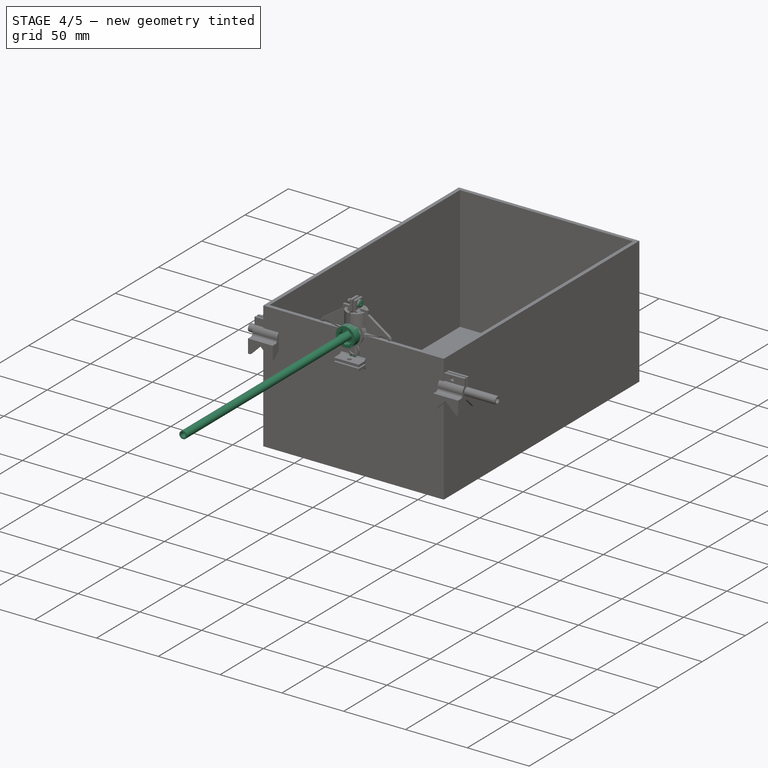
[diagram: stage 4 of 5 — iso view after this stage's code; geometry added in this stage tinted green]
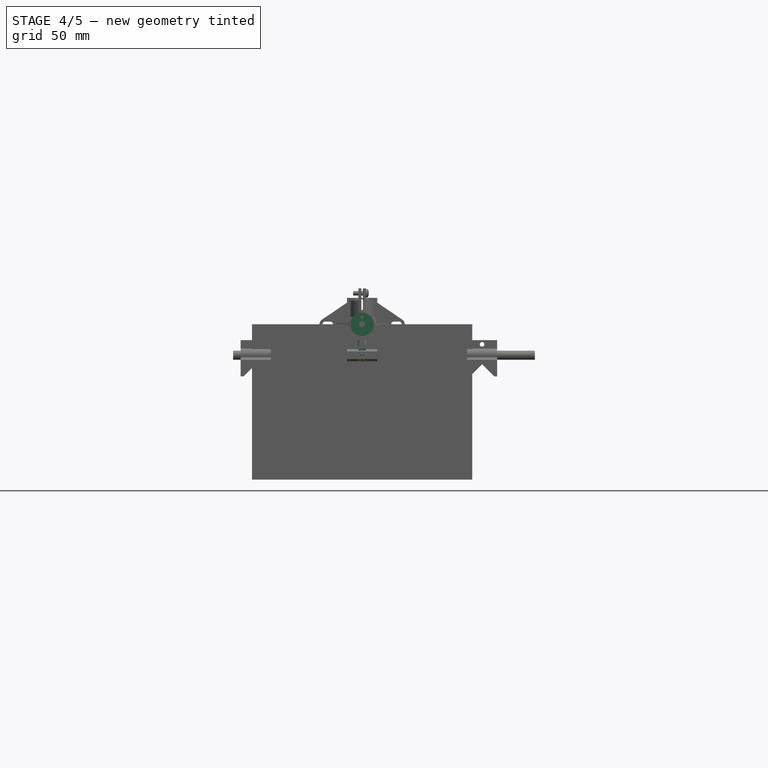
[diagram: stage 4 of 5 — front view after this stage's code; geometry added in this stage tinted green]
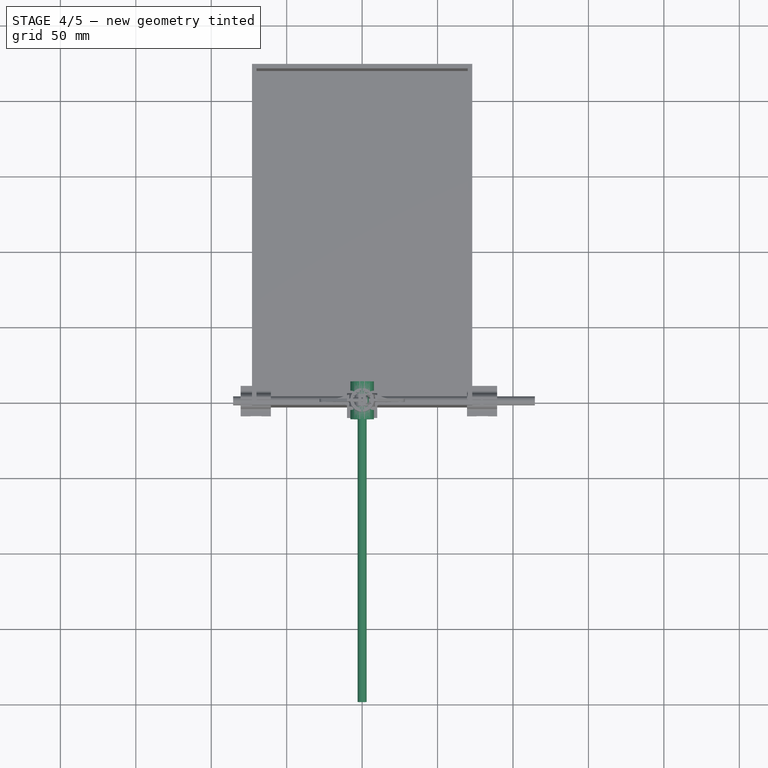
[diagram: stage 4 of 5 — top view after this stage's code; geometry added in this stage tinted green]
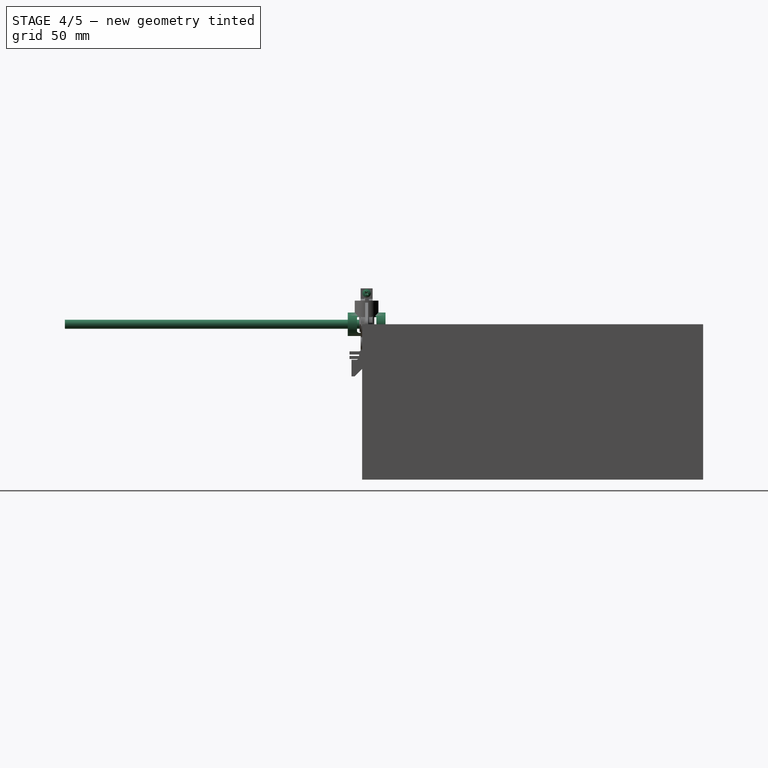
[diagram: stage 4 of 5 — right view after this stage's code; geometry added in this stage tinted green]
FEATURE [Part::FeaturePython] Screw  label="M3x8-Screw"  # Fasteners workbench fastener (typed FeaturePython)
  Placement = pos=(2.07416,0,20.5421) rot=(0,1,0;1.5708rad)
  diameter = 4
  invert = false
  length = 3
  matchOuter = false
  offset = 0
  thread = false
  type = 16
FEATURE [PartDesign::FeatureBase] Clone018
  BaseFeature = -> Body013
FEATURE [Sketcher::SketchObject] Sketch028
  ExternalGeometry = -> [Pad015]
  FullyConstrained = false
  MapMode = 5
  Placement = pos=(0,0,0) rot=(1,0,0;1.5708rad)
  Support = -> [XZ_Plane039]
  sketch-geometry (6):
    g0: ArcOfCircle CenterX=0 CenterY=-12.5 CenterZ=0 NormalX=0 NormalY=0 NormalZ=1 AngleXU=0 Radius=5 StartAngle=5.23599 EndAngle=10.472
    g1: Circle CenterX=0 CenterY=-12.5 CenterZ=0 NormalX=0 NormalY=0 NormalZ=1 AngleXU=0 Radius=3
    g2: LineSegment StartX=2.88249 StartY=-13.3314 StartZ=0 EndX=4.80415 EndY=-13.8857 EndZ=0
    g3: LineSegment StartX=2.5 StartY=-16.8301 StartZ=0 EndX=2.5 EndY=-23.8301 EndZ=0
    g4: LineSegment StartX=2.5 StartY=-23.8301 StartZ=0 EndX=-2.5 EndY=-23.8301 EndZ=0
    g5: LineSegment StartX=-2.5 StartY=-23.8301 StartZ=0 EndX=-2.5 EndY=-16.8301 EndZ=0
  constraints (13):
    c: Coincident(g0,g-3)
    c: Coincident(g1,g0)
    c: Equal(g1,g-3)
    c: PointOnObject(g2,g1)
    c: PointOnObject(g2,g0)
    c: PointOnObject(g0,g2)
    c: Distance(g2) = 2
    c: Coincident(g3,g4)
    c: Coincident(g4,g5)
    c: Vertical(g3)
    c: Symmetric(g3,g4,g-2)
    c: DistanceX(g4,g4) = 5
    c: DistanceY(g3,g3) = 7
FEATURE [PartDesign::Pad] Pad016
  BaseFeature = -> Pad015
  Direction = (1,1,1)
  Length = 8
  Length2 = 100
  Midplane = true
  Placement = pos=(0,0,0) rot=(1,0,0;1.5708rad)
  Profile = -> Sketch028
  Type = 0
FEATURE [Sketcher::SketchObject] Sketch029
  FullyConstrained = false
  MapMode = 5
  Placement = pos=(0,0,0) rot=(1,0,0;1.5708rad)
  Support = -> [XZ_Plane039]
  sketch-geometry (4):
    g0: LineSegment StartX=-0.5 StartY=-14.8236 StartZ=0 EndX=0.5 EndY=-14.8236 EndZ=0
    g1: LineSegment StartX=0.5 StartY=-14.8236 StartZ=0 EndX=0.5 EndY=-26.5803 EndZ=0
    g2: LineSegment StartX=0.5 StartY=-26.5803 StartZ=0 EndX=-0.5 EndY=-26.5803 EndZ=0
    g3: LineSegment StartX=-0.5 StartY=-26.5803 StartZ=0 EndX=-0.5 EndY=-14.8236 EndZ=0
  constraints (9):
    c: Coincident(g0,g1)
    c: Coincident(g1,g2)
    c: Coincident(g2,g3)
    c: Coincident(g3,g0)
    c: Horizontal(g2)
    c: Vertical(g1)
    c: Vertical(g3)
    c: Symmetric(g0,g0,g-2)
    c: DistanceX(g2,g2) = 1
FEATURE [PartDesign::Pocket] Pocket010
  BaseFeature = -> Pad016
  Length = 10
  Length2 = 100
  Midplane = true
  Placement = pos=(0,0,0) rot=(1,0,0;1.5708rad)
  Profile = -> Sketch029
  Type = 0
FEATURE [Sketcher::SketchObject] Sketch030
  ExternalGeometry = -> [Pocket010]
  FullyConstrained = false
  MapMode = 5
  Placement = pos=(0,0,0) rot=(0.57735,0.57735,0.57735;2.0944rad)
  Support = -> [YZ_Plane039]
  sketch-geometry (2):
    g0: Circle CenterX=0 CenterY=-20.3301 CenterZ=0 NormalX=0 NormalY=0 NormalZ=1 AngleXU=0 Radius=1.5
    g1: LineSegment StartX=-4 StartY=-16.8301 StartZ=0 EndX=4 EndY=-23.8301 EndZ=0
  constraints (5):
    c: PointOnObject(g0,g-2)
    c: Diameter(g0) = 3
    c: Coincident(g1,g-3)
    c: Coincident(g1,g-4)
    c: PointOnObject(g0,g1)
FEATURE [PartDesign::Pocket] Pocket011
  BaseFeature = -> Pocket010
  Length = 5
  Length2 = 100
  Midplane = true
  Placement = pos=(0,0,0) rot=(1,0,0;1.5708rad)
  Profile = -> Sketch030
  Type = 0
FEATURE [Sketcher::SketchObject] Sketch031
  ExternalGeometry = -> [Pocket011]
  FullyConstrained = false
  MapMode = 5
  Placement = pos=(0,0,0) rot=(1,0,0;1.5708rad)
  Support = -> [XZ_Plane039]
  sketch-geometry (10):
    g0: LineSegment StartX=2.88675 StartY=-5 StartZ=0 EndX=5.7735 EndY=-1.8e-15 EndZ=0
    g1: LineSegment StartX=5.7735 StartY=-1.8e-15 StartZ=0 EndX=2.88675 EndY=5 EndZ=0
    g2: LineSegment StartX=2.88675 StartY=5 StartZ=0 EndX=-2.88675 EndY=5 EndZ=0
    g3: LineSegment StartX=-2.88675 StartY=5 StartZ=0 EndX=-5.7735 EndY=0 EndZ=0
    g4: LineSegment StartX=-5.7735 StartY=0 StartZ=0 EndX=-2.88675 EndY=-5 EndZ=0
    g5: LineSegment StartX=-2.88675 StartY=-5 StartZ=0 EndX=2.88675 EndY=-5 EndZ=0
    g6: Circle CenterX=0 CenterY=0 CenterZ=0 NormalX=0 NormalY=0 NormalZ=1 AngleXU=0 Radius=5.7735
    g7: Circle CenterX=0 CenterY=0 CenterZ=0 NormalX=0 NormalY=0 NormalZ=1 AngleXU=0 Radius=7.7735
    g8: LineSegment StartX=5.0869 StartY=2.73071 StartZ=0 EndX=6.84905 EndY=3.67666 EndZ=0
    g9: Circle CenterX=0 CenterY=0 CenterZ=0 NormalX=0 NormalY=0 NormalZ=1 AngleXU=0 Radius=3
  constraints (23):
    c: Coincident(g0,g1)
    c: Coincident(g1,g2)
    c: Coincident(g2,g3)
    c: Coincident(g3,g4)
    c: Coincident(g4,g5)
    c: Coincident(g5,g0)
    c: Equal(g0, g1-g5) x5
    c: PointOnObject(g0,g6)
    c: PointOnObject(g1,g6)
    c: PointOnObject(g2,g6)
    c: PointOnObject(g3,g6)
    c: PointOnObject(g4,g6)
    c: PointOnObject(g5,g6)
    c: Coincident(g6,g-1)
    c: Horizontal(g2)
    c: DistanceY(g0,g1) = 10
    c: Coincident(g7,g-1)
    c: PointOnObject(g8,g6)
    c: PointOnObject(g8,g7)
    c: PointOnObject(g7,g8)
    c: Distance(g8) = 2
    c: Coincident(g9,g7)
    c: Equal(g9,g-3)
FEATURE [PartDesign::Pad] Pad017
  BaseFeature = -> Pocket011
  Direction = (1,1,1)
  Length = 25
  Length2 = 100
  Midplane = true
  Placement = pos=(0,0,0) rot=(1,0,0;1.5708rad)
  Profile = -> Sketch031
  Type = 0
FEATURE [Sketcher::SketchObject] Sketch032
  FullyConstrained = false
  MapMode = 5
  Placement = pos=(0,12.5,-5.5e-15) rot=(-1,0,0;1.5708rad)
  Support = -> [Pad017]
  sketch-geometry (7):
    g0: LineSegment StartX=2.88675 StartY=-5 StartZ=0 EndX=5.7735 EndY=3.6e-15 EndZ=0
    g1: LineSegment StartX=5.7735 StartY=3.6e-15 StartZ=0 EndX=2.88675 EndY=5 EndZ=0
    g2: LineSegment StartX=2.88675 StartY=5 StartZ=0 EndX=-2.88675 EndY=5 EndZ=0
    g3: LineSegment StartX=-2.88675 StartY=5 StartZ=0 EndX=-5.7735 EndY=3.6e-15 EndZ=0
    g4: LineSegment StartX=-5.7735 StartY=3.6e-15 StartZ=0 EndX=-2.88675 EndY=-5 EndZ=0
    g5: LineSegment StartX=-2.88675 StartY=-5 StartZ=0 EndX=2.88675 EndY=-5 EndZ=0
    g6: Circle CenterX=0 CenterY=0 CenterZ=0 NormalX=0 NormalY=0 NormalZ=1 AngleXU=0 Radius=5.7735
  constraints (16):
    c: Coincident(g0,g1)
    c: Coincident(g1,g2)
    c: Coincident(g2,g3)
    c: Coincident(g3,g4)
    c: Coincident(g4,g5)
    c: Coincident(g5,g0)
    c: Equal(g0, g1-g5) x5
    c: PointOnObject(g0,g6)
    c: PointOnObject(g1,g6)
    c: PointOnObject(g2,g6)
    c: PointOnObject(g3,g6)
    c: PointOnObject(g4,g6)
    c: PointOnObject(g5,g6)
    c: Coincident(g6,g-1)
    c: Horizontal(g2)
    c: DistanceY(g0,g1) = 10
FEATURE [PartDesign::Pocket] Pocket012
  BaseFeature = -> Pad017
  Length = 4
  Length2 = 100
  Placement = pos=(0,0,0) rot=(1,0,0;1.5708rad)
  Profile = -> Sketch032
  Type = 0
FEATURE [Sketcher::SketchObject] Sketch033
  FullyConstrained = false
  MapMode = 5
  Placement = pos=(0,-12.5,5.5e-15) rot=(1,0,0;1.5708rad)
  Support = -> [Pocket012]
  sketch-geometry (26):
    g0: LineSegment StartX=-2.88675 StartY=-5 StartZ=0 EndX=-1.33975 EndY=-5 EndZ=0
    g1: LineSegment StartX=2.88675 StartY=-5 StartZ=0 EndX=3.66025 EndY=-3.66025 EndZ=0
    g2: LineSegment StartX=5.7735 StartY=-3.648e-13 StartZ=0 EndX=5 EndY=1.33975 EndZ=0
    g3: LineSegment StartX=2.88675 StartY=5 StartZ=0 EndX=1.33975 EndY=5 EndZ=0
    g4: LineSegment StartX=-2.88675 StartY=5 StartZ=0 EndX=-3.66025 EndY=3.66025 EndZ=0
    g5: LineSegment StartX=-5.7735 StartY=-3.908e-13 StartZ=0 EndX=-5 EndY=-1.33975 EndZ=0
    g6: Circle CenterX=0 CenterY=0 CenterZ=0 NormalX=0 NormalY=0 NormalZ=1 AngleXU=0 Radius=5.7735
    g7: LineSegment StartX=0 StartY=-5.7735 StartZ=0 EndX=1.33975 EndY=-5 EndZ=0
    g8: LineSegment StartX=5 StartY=-2.88675 StartZ=0 EndX=5 EndY=-1.33975 EndZ=0
    g9: LineSegment StartX=5 StartY=2.88675 StartZ=0 EndX=3.66025 EndY=3.66025 EndZ=0
    g10: LineSegment StartX=2.2895e-12 StartY=5.7735 StartZ=0 EndX=-1.33975 EndY=5 EndZ=0
    g11: LineSegment StartX=-5 StartY=2.88675 StartZ=0 EndX=-5 EndY=1.33975 EndZ=0
    g12: LineSegment StartX=-5 StartY=-2.88675 StartZ=0 EndX=-3.66025 EndY=-3.66025 EndZ=0
    g13: Circle CenterX=0 CenterY=0 CenterZ=0 NormalX=0 NormalY=0 NormalZ=1 AngleXU=0 Radius=5.7735
    g14: LineSegment StartX=-3.66025 StartY=3.66025 StartZ=0 EndX=-5 EndY=2.88675 EndZ=0
    g15: LineSegment StartX=-1.33975 StartY=5 StartZ=0 EndX=-2.88675 EndY=5 EndZ=0
    g16: LineSegment StartX=1.33975 StartY=5 StartZ=0 EndX=2.2895e-12 EndY=5.7735 EndZ=0
    g17: LineSegment StartX=3.66025 StartY=3.66025 StartZ=0 EndX=2.88675 EndY=5 EndZ=0
    g18: LineSegment StartX=5 StartY=1.33975 StartZ=0 EndX=5 EndY=2.88675 EndZ=0
    g19: LineSegment StartX=5 StartY=-1.33975 StartZ=0 EndX=5.7735 EndY=-3.648e-13 EndZ=0
    g20: LineSegment StartX=3.66025 StartY=-3.66025 StartZ=0 EndX=5 EndY=-2.88675 EndZ=0
    g21: LineSegment StartX=1.33975 StartY=-5 StartZ=0 EndX=2.88675 EndY=-5 EndZ=0
    g22: LineSegment StartX=-1.33975 StartY=-5 StartZ=0 EndX=0 EndY=-5.7735 EndZ=0
    g23: LineSegment StartX=-3.66025 StartY=-3.66025 StartZ=0 EndX=-2.88675 EndY=-5 EndZ=0
    g24: LineSegment StartX=-5 StartY=-1.33975 StartZ=0 EndX=-5 EndY=-2.88675 EndZ=0
    g25: LineSegment StartX=-5 StartY=1.33975 StartZ=0 EndX=-5.7735 EndY=-3.908e-13 EndZ=0
  constraints (54):
    c: Coincident(g21,g1)
    c: Coincident(g19,g2)
    c: Coincident(g17,g3)
    c: Coincident(g15,g4)
    c: Coincident(g25,g5)
    c: Coincident(g23,g0)
    c: PointOnObject(g21,g6)
    c: PointOnObject(g19,g6)
    c: PointOnObject(g17,g6)
    c: PointOnObject(g15,g6)
    c: PointOnObject(g25,g6)
    c: PointOnObject(g23,g6)
    c: Coincident(g6,g-1)
    c: Horizontal(g3)
    c: DistanceY(g21,g17) = 10
    c: Coincident(g20,g8)
    c: Coincident(g18,g9)
    c: Coincident(g16,g10)
    c: Coincident(g14,g11)
    c: Coincident(g24,g12)
    c: Coincident(g22,g7)
    c: PointOnObject(g20,g13)
    c: PointOnObject(g18,g13)
    c: PointOnObject(g16,g13)
    c: PointOnObject(g14,g13)
    c: PointOnObject(g24,g13)
    c: PointOnObject(g22,g13)
    c: Coincident(g13,g-1)
    c: PointOnObject(g22,g-2)
    c: Equal(g13,g6)
    c: Tangent(g10,g14)
    c: Coincident(g15,g10)
    c: Tangent(g3,g15)
    c: Coincident(g16,g3)
    c: Tangent(g9,g16)
    c: Coincident(g17,g9)
    c: Tangent(g2,g17)
    c: Coincident(g18,g2)
    c: Tangent(g8,g18)
    c: Coincident(g19,g8)
    c: Tangent(g1,g19)
    c: Coincident(g20,g1)
    c: Tangent(g7,g20)
    c: Coincident(g21,g7)
    c: Tangent(g0,g21)
    c: Coincident(g22,g0)
    c: Tangent(g12,g22)
    c: Coincident(g23,g12)
    c: Tangent(g5,g23)
    c: Coincident(g24,g5)
    c: Tangent(g11,g24)
    c: Coincident(g4,g14)
    c: Coincident(g25,g11)
    c: Tangent(g4,g25)
FEATURE [PartDesign::Pocket] Pocket013
  BaseFeature = -> Pocket012
  Length = 4
  Length2 = 100
  Placement = pos=(0,0,0) rot=(1,0,0;1.5708rad)
  Profile = -> Sketch033
  Type = 0
FEATURE [Sketcher::SketchObject] Sketch034
  ExternalGeometry = -> [Pocket013]
  FullyConstrained = false
  MapMode = 5
  Placement = pos=(0,0,0) rot=(1,0,0;1.5708rad)
  Support = -> [XZ_Plane039]
  sketch-geometry (2):
    g0: Circle CenterX=0 CenterY=0 CenterZ=0 NormalX=0 NormalY=0 NormalZ=1 AngleXU=0 Radius=5.7735
    g1: LineSegment StartX=4.10319 StartY=4.06167 StartZ=0 EndX=5.52457 EndY=5.46868 EndZ=0
  constraints (5):
    c: Coincident(g0,g-1)
    c: PointOnObject(g1,g0)
    c: PointOnObject(g1,g-3)
    c: PointOnObject(g0,g1)
    c: Distance(g1) = 2
FEATURE [PartDesign::Pocket] Pocket014
  BaseFeature = -> Pocket013
  Length = 13
  Length2 = 100
  Midplane = true
  Placement = pos=(0,0,0) rot=(1,0,0;1.5708rad)
  Profile = -> Sketch034
  Type = 0
FEATURE [Sketcher::SketchObject] Sketch035
  ExternalGeometry = -> [Pocket014]
  FullyConstrained = false
  MapMode = 5
  Placement = pos=(0,0,0) rot=(0.57735,0.57735,0.57735;2.0944rad)
  Support = -> [YZ_Plane039]
  sketch-geometry (12):
    g0: LineSegment StartX=-4.93358 StartY=5.7191 StartZ=0 EndX=-1.01423 EndY=5.7191 EndZ=0
    g1: LineSegment StartX=-1.01423 StartY=5.7191 StartZ=0 EndX=-1.01423 EndY=-5.71516 EndZ=0
    g2: LineSegment StartX=-1.01423 StartY=-5.71516 StartZ=0 EndX=-4.93358 EndY=-5.71516 EndZ=0
    g3: LineSegment StartX=-6.43358 StartY=-4.21516 StartZ=0 EndX=-6.43358 EndY=4.2191 EndZ=0
    g4: LineSegment StartX=1.01423 StartY=5.7191 StartZ=0 EndX=4.93358 EndY=5.7191 EndZ=0
    g5: LineSegment StartX=6.43358 StartY=4.2191 StartZ=0 EndX=6.43358 EndY=-4.21516 EndZ=0
    g6: LineSegment StartX=4.93358 StartY=-5.71516 StartZ=0 EndX=1.01423 EndY=-5.71516 EndZ=0
    g7: LineSegment StartX=1.01423 StartY=-5.71516 StartZ=0 EndX=1.01423 EndY=5.7191 EndZ=0
    g8: ArcOfCircle CenterX=-4.93358 CenterY=4.2191 CenterZ=0 NormalX=0 NormalY=0 NormalZ=1 AngleXU=0 Radius=1.5 StartAngle=1.5708 EndAngle=3.14159
    g9: ArcOfCircle CenterX=4.93358 CenterY=4.2191 CenterZ=0 NormalX=0 NormalY=0 NormalZ=1 AngleXU=0 Radius=1.5 StartAngle=0 EndAngle=1.5708
    g10: ArcOfCircle CenterX=-4.93358 CenterY=-4.21516 CenterZ=0 NormalX=0 NormalY=0 NormalZ=1 AngleXU=0 Radius=1.5 StartAngle=3.14159 EndAngle=4.71239
    g11: ArcOfCircle CenterX=4.93358 CenterY=-4.21516 CenterZ=0 NormalX=0 NormalY=0 NormalZ=1 AngleXU=0 Radius=1.5 StartAngle=4.71239 EndAngle=6.28319
  constraints (27):
    c: Coincident(g0,g1)
    c: Coincident(g1,g2)
    c: Horizontal(g0)
    c: Horizontal(g2)
    c: Vertical(g1)
    c: Vertical(g3)
    c: Coincident(g6,g7)
    c: Coincident(g7,g4)
    c: Horizontal(g4)
    c: Horizontal(g6)
    c: Vertical(g5)
    c: Vertical(g7)
    c: Symmetric(g0,g4,g-2)
    c: Equal(g0,g4)
    c: Horizontal(g1,g6)
    c: Tangent(g0,g8) = 1.5708
    c: Tangent(g3,g8) = 1.5708
    c: Tangent(g4,g9) = 1.5708
    c: Tangent(g5,g9) = 1.5708
    c: Tangent(g2,g10) = 1.5708
    c: Tangent(g3,g10) = 1.5708
    c: Tangent(g6,g11) = 1.5708
    c: Tangent(g5,g11) = 1.5708
    c: Equal(g8,g10)
    c: Equal(g10,g11)
    c: Equal(g11,g9)
    c: Radius(g9) = 1.5
FEATURE [PartDesign::Pocket] Pocket015
  BaseFeature = -> Pocket014
  Length = 21
  Length2 = 100
  Midplane = true
  Placement = pos=(0,0,0) rot=(1,0,0;1.5708rad)
  Profile = -> Sketch035
  Type = 0
FEATURE [PartDesign::FeatureBase] Clone019
  BaseFeature = -> Body013
FEATURE [PartDesign::Body] Body031  label="bd_pipe_slider"
  BaseFeature = -> Body013
  Group = -> [Clone019]
  Origin = -> Origin040
  Placement = pos=(0,190,-12.5) rot=(0,0,1;0rad)
  Tip = -> Clone019
FEATURE [Sketcher::SketchObject] Sketch036
  ExternalGeometry = -> [Pocket015]
  FullyConstrained = false
  MapMode = 5
  Placement = pos=(0,0,0) rot=(1,0,0;1.5708rad)
  Support = -> [XZ_Plane039]
  sketch-geometry (8):
    g0: ArcOfCircle CenterX=0 CenterY=13.5 CenterZ=0 NormalX=0 NormalY=0 NormalZ=1 AngleXU=0 Radius=3 StartAngle=0 EndAngle=3.14159
    g1: ArcOfCircle CenterX=0 CenterY=11.5 CenterZ=0 NormalX=0 NormalY=0 NormalZ=1 AngleXU=0 Radius=3 StartAngle=3.14159 EndAngle=6.28319
    g2: LineSegment StartX=-3 StartY=13.5 StartZ=0 EndX=-3 EndY=11.5 EndZ=0
    g3: LineSegment StartX=3 StartY=13.5 StartZ=0 EndX=3 EndY=11.5 EndZ=0
    g4: ArcOfCircle CenterX=0 CenterY=13.5 CenterZ=0 NormalX=0 NormalY=0 NormalZ=1 AngleXU=0 Radius=4 StartAngle=2e-16 EndAngle=3.14159
    g5: ArcOfCircle CenterX=0 CenterY=11.5 CenterZ=0 NormalX=0 NormalY=0 NormalZ=1 AngleXU=0 Radius=4 StartAngle=3.14159 EndAngle=6.28319
    g6: LineSegment StartX=-4 StartY=13.5 StartZ=0 EndX=-4 EndY=11.5 EndZ=0
    g7: LineSegment StartX=4 StartY=13.5 StartZ=0 EndX=4 EndY=11.5 EndZ=0
  constraints (16):
    c: Tangent(g0,g3)
    c: Tangent(g0,g2)
    c: Tangent(g2,g1)
    c: Tangent(g3,g1)
    c: Vertical(g2)
    c: Tangent(g4,g7)
    c: Tangent(g4,g6)
    c: Tangent(g6,g5)
    c: Tangent(g7,g5)
    c: Vertical(g6)
    c: Coincident(g4,g0)
    c: Coincident(g5,g1)
    c: Diameter(g0) = 6
    c: Diameter(g4) = 8
    c: Coincident(g1,g-4)
    c: Coincident(g-3,g0)
FEATURE [PartDesign::Pad] Pad018
  BaseFeature = -> Pocket015
  Direction = (1,1,1)
  Length = 4
  Length2 = 100
  Midplane = true
  Placement = pos=(0,0,0) rot=(1,0,0;1.5708rad)
  Profile = -> Sketch036
  Type = 0
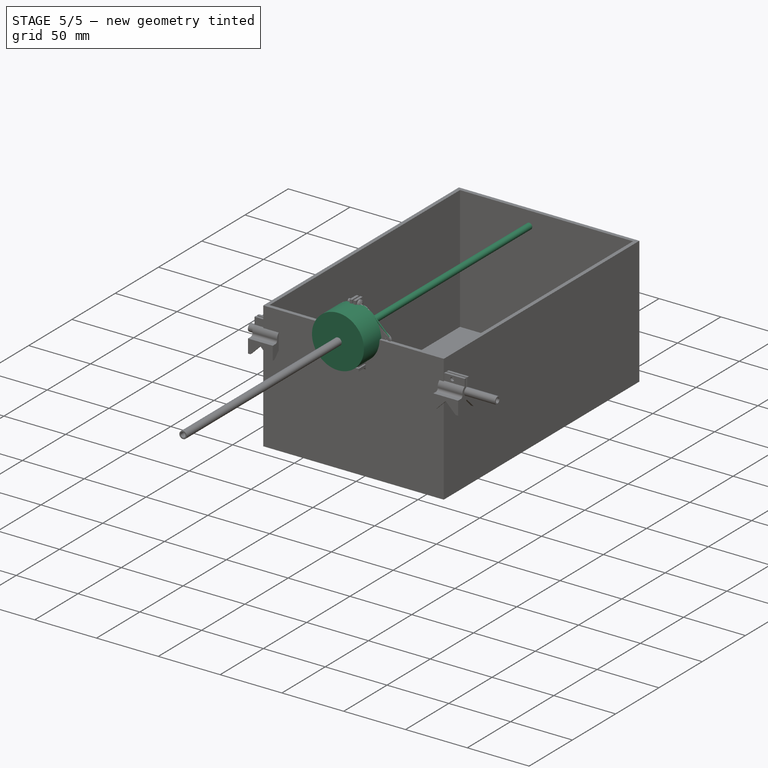
[diagram: stage 5 of 5 — iso view after this stage's code; geometry added in this stage tinted green]
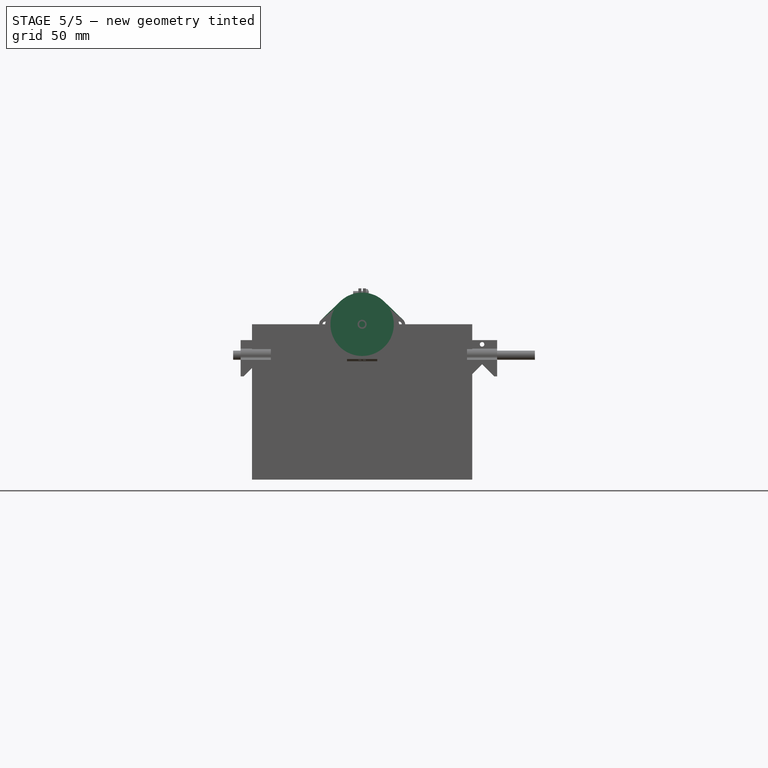
[diagram: stage 5 of 5 — front view after this stage's code; geometry added in this stage tinted green]
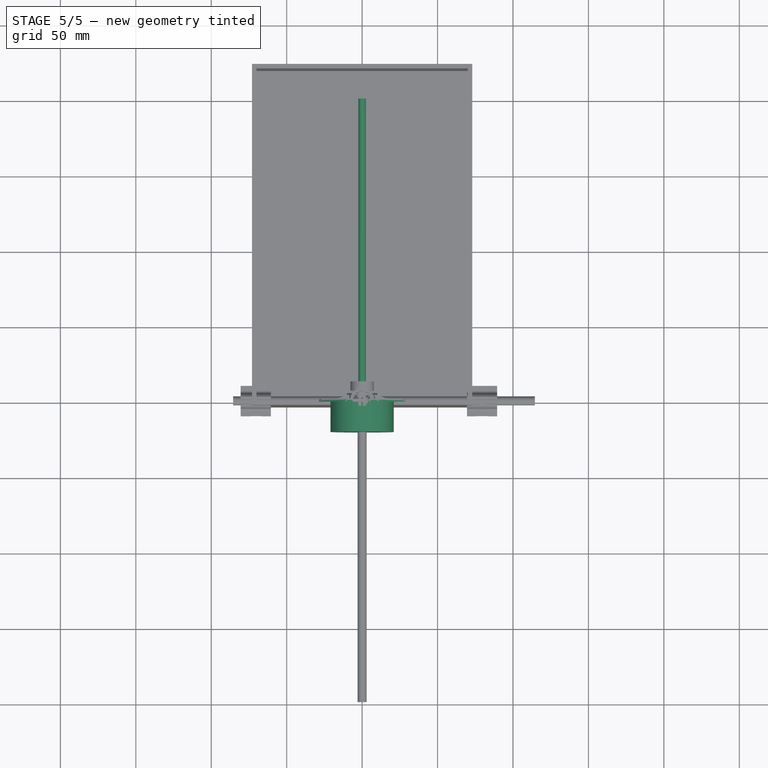
[diagram: stage 5 of 5 — top view after this stage's code; geometry added in this stage tinted green]
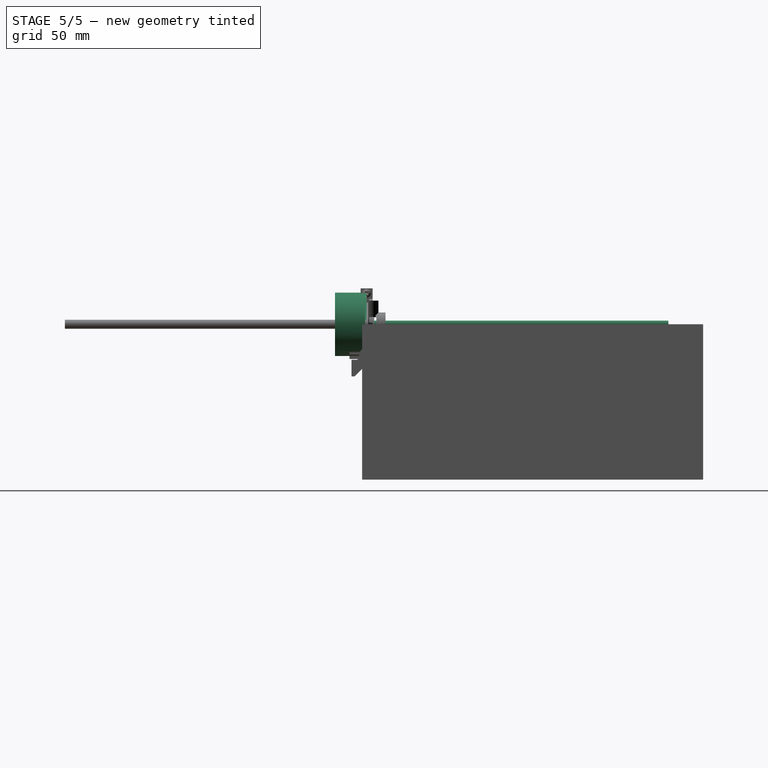
[diagram: stage 5 of 5 — right view after this stage's code; geometry added in this stage tinted green]
FEATURE [Part::FeaturePython] ScrewTap  label="M6x200.0-ScrewTap"  # Fasteners workbench fastener (typed FeaturePython)
  Placement = pos=(0,0,0) rot=(1,0,0;1.5708rad)
  diameter = 8
  invert = false
  length = 200
  matchOuter = false
  offset = 0
  thread = false
  expr: length = <<params>>.Constraints.length
FEATURE [Sketcher::SketchObject] Sketch  label="params"
  FullyConstrained = false
  Placement = pos=(0,0,0) rot=(1,0,0;1.5708rad)
  sketch-geometry (9):
    g0: Circle CenterX=-15 CenterY=0 CenterZ=0 NormalX=0 NormalY=0 NormalZ=1 AngleXU=0 Radius=3
    g1: Circle CenterX=15 CenterY=0 CenterZ=0 NormalX=0 NormalY=0 NormalZ=1 AngleXU=0 Radius=3
    g2: Circle CenterX=-15 CenterY=0 CenterZ=0 NormalX=0 NormalY=0 NormalZ=1 AngleXU=0 Radius=10
    g3: Circle CenterX=15 CenterY=0 CenterZ=0 NormalX=0 NormalY=0 NormalZ=1 AngleXU=0 Radius=10
    g4: Circle CenterX=0 CenterY=13.2288 CenterZ=0 NormalX=0 NormalY=0 NormalZ=1 AngleXU=0 Radius=10
    g5: LineSegment StartX=58.781 StartY=3 StartZ=0 EndX=258.781 EndY=3 EndZ=0
    g6: LineSegment StartX=258.781 StartY=3 StartZ=0 EndX=258.781 EndY=-3 EndZ=0
    g7: LineSegment StartX=258.781 StartY=-3 StartZ=0 EndX=58.781 EndY=-3 EndZ=0
    g8: LineSegment StartX=58.781 StartY=-3 StartZ=0 EndX=58.781 EndY=3 EndZ=0
  constraints (23):
    c: PointOnObject(g0,g-1)
    c: Symmetric(g0,g1,g-2)
    c: Equal(g0,g1)
    c: Diameter(g1) = 6
    c: DistanceX(g0,g1) = 30  'entraxe'
    c: Coincident(g2,g0)
    c: Coincident(g3,g1)
    c: PointOnObject(g4,g-2)
    c: Equal(g4,g2)
    c: Equal(g2,g3)
    c: Tangent(g2,g4)
    c: Diameter(g3) = 20
    c: Coincident(g5,g6)
    c: Coincident(g6,g7)
    c: Coincident(g7,g8)
    c: Coincident(g8,g5)
    c: Horizontal(g5)
    c: Horizontal(g7)
    c: Vertical(g6)
    c: Vertical(g8)
    c: Tangent(g5,g1)
    c: Tangent(g7,g1)
    c: DistanceX(g7,g7) = 200  'length'
FEATURE [Sketcher::SketchObject] Sketch001  label="sk_ballb"
  FullyConstrained = false
  MapMode = 5
  Support = -> [XY_Plane001]
  sketch-geometry (6):
    g0: LineSegment StartX=-3 StartY=0 StartZ=0 EndX=-7.5 EndY=0 EndZ=0
    g1: LineSegment StartX=-7.5 StartY=0 StartZ=0 EndX=-7.5 EndY=1.09 EndZ=0
    g2: LineSegment StartX=-7.5 StartY=1.09 StartZ=0 EndX=-6.5 EndY=1.09 EndZ=0
    g3: LineSegment StartX=-6.5 StartY=1.09 StartZ=0 EndX=-6.5 EndY=5 EndZ=0
    g4: LineSegment StartX=-6.5 StartY=5 StartZ=0 EndX=-3 EndY=5 EndZ=0
    g5: LineSegment StartX=-3 StartY=5 StartZ=0 EndX=-3 EndY=0 EndZ=0
  constraints (18):
    c: PointOnObject(g0,g-1)
    c: PointOnObject(g0,g-1)
    c: Coincident(g1,g0)
    c: Vertical(g1)
    c: Coincident(g2,g1)
    c: Horizontal(g2)
    c: Coincident(g3,g2)
    c: Vertical(g3)
    c: Coincident(g4,g3)
    c: Horizontal(g4)
    c: Coincident(g5,g4)
    c: Coincident(g5,g0)
    c: Vertical(g5)
    c: DistanceX(g0,g-1) = 3
    c: DistanceX(g2,g-1) = 6.5  'ext_radius'
    c: DistanceX(g0,g-1) = 7.5  'ext_radius2'
    c: DistanceY(g-1,g4) = 5  'ext_thick'
    c: DistanceY(g1,g1) = 1.09  'ext_thick2'
FEATURE [PartDesign::Revolution] Revolution
  Angle = 360
  Axis = (0,1,0)
  Base = (0,0,0)
  Profile = -> Sketch001
  ReferenceAxis = -> Sketch001 [V_Axis]
FEATURE [PartDesign::Body] Body  label="bd_ball_bearing_6x13"
  Group = -> [Sketch001,Revolution]
  Origin = -> Origin001
  Tip = -> Revolution
FEATURE [PartDesign::FeatureBase] Clone001
  BaseFeature = -> Body
FEATURE [PartDesign::Body] Body002  label="bd_bbearing_front"
  BaseFeature = -> Body
  Group = -> [Clone001]
  Origin = -> Origin003
  Placement = pos=(0,5,0) rot=(0,0,1;0rad)
  Tip = -> Clone001
FEATURE [PartDesign::FeatureBase] Clone003
  BaseFeature = -> Body
FEATURE [PartDesign::Body] Body004  label="bd_bbearing_rear"
  BaseFeature = -> Body
  Group = -> [Clone003]
  Origin = -> Origin007
  Placement = pos=(0,195,0) rot=(0,0,1;3.14159rad)
  Tip = -> Clone003
  expr: .Placement.Base.y = <<params>>.Constraints.length - 5mm
FEATURE [PartDesign::FeatureBase] Clone004
  BaseFeature = -> Nut
  Placement = pos=(0,0,0) rot=(1,0,0;1.5708rad)
FEATURE [PartDesign::Body] Body005  label="bd_nut_rear_2"
  BaseFeature = -> Nut
  Group = -> [Clone004]
  Origin = -> Origin010
  Placement = pos=(0,200,0) rot=(0,0,1;0rad)
  Tip = -> Clone004
  expr: .Placement.Base.y = <<params>>.Constraints.length
FEATURE [PartDesign::FeatureBase] Clone005
  BaseFeature = -> ScrewTap
  Placement = pos=(0,0,0) rot=(1,0,0;1.5708rad)
FEATURE [PartDesign::Body] Body006  label="bd_threaded_rod"
  BaseFeature = -> ScrewTap
  Group = -> [Clone005]
  Origin = -> Origin011
  Tip = -> Clone005
FEATURE [PartDesign::FeatureBase] Clone008
  BaseFeature = -> Nut
  Placement = pos=(0,0,0) rot=(1,0,0;1.5708rad)
FEATURE [PartDesign::Body] Body013  label="bd_pipe_6mm"
  Group = -> [Sketch006,Pad002]
  Origin = -> Origin018
  Tip = -> Pad002
FEATURE [Sketcher::SketchObject] Sketch017
  FullyConstrained = false
  MapMode = 5
  Support = -> [XY_Plane030]
  expr: Constraints[18] = 2 / 2
  expr: Constraints[19] = 10 / 2
  expr: Constraints[20] = 35 / 2
  sketch-geometry (8):
    g0: LineSegment StartX=0 StartY=7 StartZ=0 EndX=0 EndY=-15 EndZ=0
    g1: LineSegment StartX=0 StartY=7 StartZ=0 EndX=1 EndY=7 EndZ=0
    g2: LineSegment StartX=1 StartY=7 StartZ=0 EndX=1 EndY=1.5 EndZ=0
    g3: LineSegment StartX=1 StartY=1.5 StartZ=0 EndX=5 EndY=1.5 EndZ=0
    g4: LineSegment StartX=5 StartY=1.5 StartZ=0 EndX=5 EndY=0 EndZ=0
    g5: LineSegment StartX=5 StartY=0 StartZ=0 EndX=17.5 EndY=0 EndZ=0
    g6: LineSegment StartX=17.5 StartY=0 StartZ=0 EndX=17.5 EndY=-15 EndZ=0
    g7: LineSegment StartX=17.5 StartY=-15 StartZ=0 EndX=0 EndY=-15 EndZ=0
  constraints (24):
    c: PointOnObject(g0,g-2)
    c: PointOnObject(g0,g-2)
    c: Coincident(g1,g0)
    c: Horizontal(g1)
    c: Coincident(g2,g1)
    c: Vertical(g2)
    c: Coincident(g3,g2)
    c: Horizontal(g3)
    c: Coincident(g4,g3)
    c: Vertical(g4)
    c: PointOnObject(g4,g-1)
    c: Coincident(g5,g4)
    c: PointOnObject(g5,g-1)
    c: Coincident(g6,g5)
    c: Vertical(g6)
    c: Coincident(g7,g6)
    c: Horizontal(g7)
    c: Coincident(g0,g7)
    c: DistanceX(g1,g1) = 1
    c: DistanceX(g-1,g3) = 5
    c: DistanceX(g-1,g5) = 17.5
    c: DistanceY(g0,g-1) = 15
    c: DistanceY(g-1,g2) = 1.5
    c: DistanceY(g-1,g0) = 7
FEATURE [PartDesign::Revolution] Revolution001
  Angle = 360
  Axis = (0,1,0)
  Base = (0,0,0)
  Profile = -> Sketch017
  ReferenceAxis = -> Sketch017 [V_Axis]
FEATURE [Sketcher::SketchObject] Sketch018
  ExternalGeometry = -> [Revolution001]
  FullyConstrained = false
  MapMode = 5
  Placement = pos=(0,0,0) rot=(0,0.707107,0.707107;3.14159rad)
  Support = -> [Revolution001]
  sketch-geometry (12):
    g0: Circle CenterX=-21 CenterY=0 CenterZ=0 NormalX=0 NormalY=0 NormalZ=1 AngleXU=0 Radius=1.75
    g1: Circle CenterX=21 CenterY=0 CenterZ=0 NormalX=0 NormalY=0 NormalZ=1 AngleXU=0 Radius=1.75
    g2: ArcOfCircle CenterX=0 CenterY=0 CenterZ=0 NormalX=0 NormalY=0 NormalZ=1 AngleXU=0 Radius=17.5 StartAngle=0.841069 EndAngle=2.30052
    g3: ArcOfCircle CenterX=0 CenterY=0 CenterZ=0 NormalX=0 NormalY=0 NormalZ=1 AngleXU=0 Radius=17.5 StartAngle=3.98266 EndAngle=5.44212
    g4: ArcOfCircle CenterX=-21 CenterY=0 CenterZ=0 NormalX=0 NormalY=0 NormalZ=1 AngleXU=0 Radius=3.5 StartAngle=2.30052 EndAngle=3.98266
    g5: ArcOfCircle CenterX=21 CenterY=0 CenterZ=0 NormalX=0 NormalY=0 NormalZ=1 AngleXU=0 Radius=3.5 StartAngle=5.44212 EndAngle=7.12425
    g6: LineSegment StartX=-23.3333 StartY=2.60875 StartZ=0 EndX=-11.6667 EndY=13.0437 EndZ=0
    g7: LineSegment StartX=11.6667 StartY=13.0437 StartZ=0 EndX=23.3333 EndY=2.60875 EndZ=0
    g8: LineSegment StartX=23.3333 StartY=-2.60875 StartZ=0 EndX=11.6667 EndY=-13.0437 EndZ=0
    g9: LineSegment StartX=-11.6667 StartY=-13.0437 StartZ=0 EndX=-23.3333 EndY=-2.60875 EndZ=0
    g10: GeomPoint X=-24.5 Y=0 Z=0
    g11: GeomPoint X=24.5 Y=0 Z=0
  constraints (25):
    c: PointOnObject(g0,g-1)
    c: Equal(g0,g1)
    c: Diameter(g1) = 3.5
    c: Symmetric(g0,g1,g-1)
    c: DistanceX(g0,g1) = 42
    c: Coincident(g2,g-1)
    c: Coincident(g3,g2)
    c: Coincident(g4,g0)
    c: Coincident(g5,g1)
    c: Equal(g2,g-3)
    c: Equal(g-3,g3)
    c: Tangent(g6,g2) = 1.5708
    c: Tangent(g7,g2) = 1.5708
    c: Tangent(g7,g5) = 1.5708
    c: Tangent(g8,g5) = 1.5708
    c: Tangent(g8,g3) = 1.5708
    c: Tangent(g9,g3) = 1.5708
    c: Tangent(g9,g4) = 1.5708
    c: Equal(g4,g5)
    c: PointOnObject(g10,g4)
    c: PointOnObject(g11,g5)
    c: Horizontal(g10,g0)
    c: Horizontal(g1,g11)
    c: DistanceX(g10,g11) = 49
    c: Tangent(g6,g4) = 1.5708
FEATURE [PartDesign::Pad] Pad007
  BaseFeature = -> Revolution001
  Direction = (1,1,1)
  Length = 0.8
  Length2 = 100
  Profile = -> Sketch018
  Reversed = true
  Type = 0
FEATURE [PartDesign::Body] Body023  label="motor_A"
  Group = -> [Sketch017,Revolution001,Sketch018,Pad007]
  Origin = -> Origin030
  Placement = pos=(15,-13,0) rot=(0,0,1;0rad)
  Tip = -> Pad007
FEATURE [Sketcher::SketchObject] Sketch020
  FullyConstrained = false
  MapMode = 5
  Support = -> [XY_Plane030]
  expr: Constraints[20] = 42 / 2
  expr: Constraints[19] = 10 / 2
  expr: Constraints[18] = 3 / 2
  sketch-geometry (8):
    g0: LineSegment StartX=0 StartY=11.5 StartZ=0 EndX=0 EndY=-21 EndZ=0
    g1: LineSegment StartX=0 StartY=11.5 StartZ=0 EndX=1.5 EndY=11.5 EndZ=0
    g2: LineSegment StartX=1.5 StartY=11.5 StartZ=0 EndX=1.5 EndY=1.5 EndZ=0
    g3: LineSegment StartX=1.5 StartY=1.5 StartZ=0 EndX=5 EndY=1.5 EndZ=0
    g4: LineSegment StartX=5 StartY=1.5 StartZ=0 EndX=5 EndY=0 EndZ=0
    g5: LineSegment StartX=5 StartY=0 StartZ=0 EndX=21 EndY=0 EndZ=0
    g6: LineSegment StartX=21 StartY=0 StartZ=0 EndX=21 EndY=-21 EndZ=0
    g7: LineSegment StartX=21 StartY=-21 StartZ=0 EndX=0 EndY=-21 EndZ=0
  constraints (24):
    c: PointOnObject(g0,g-2)
    c: PointOnObject(g0,g-2)
    c: Coincident(g1,g0)
    c: Horizontal(g1)
    c: Coincident(g2,g1)
    c: Vertical(g2)
    c: Coincident(g3,g2)
    c: Horizontal(g3)
    c: Coincident(g4,g3)
    c: Vertical(g4)
    c: PointOnObject(g4,g-1)
    c: Coincident(g5,g4)
    c: PointOnObject(g5,g-1)
    c: Coincident(g6,g5)
    c: Vertical(g6)
    c: Coincident(g7,g6)
    c: Horizontal(g7)
    c: Coincident(g0,g7)
    c: DistanceX(g1,g1) = 1.5
    c: DistanceX(g-1,g3) = 5
    c: DistanceX(g-1,g5) = 21
    c: DistanceY(g0,g-1) = 21
    c: DistanceY(g-1,g2) = 1.5
    c: DistanceY(g-1,g0) = 11.5
FEATURE [PartDesign::Revolution] Revolution002
  Angle = 360
  Axis = (0,1,0)
  Base = (0,0,0)
  Profile = -> Sketch020
  ReferenceAxis = -> Sketch020 [V_Axis]
FEATURE [Sketcher::SketchObject] Sketch019
  ExternalGeometry = -> [Revolution002]
  FullyConstrained = false
  MapMode = 5
  Placement = pos=(0,0,0) rot=(0,0.707107,0.707107;3.14159rad)
  Support = -> [Revolution002]
  sketch-geometry (12):
    g0: Circle CenterX=-24.5 CenterY=0 CenterZ=0 NormalX=0 NormalY=0 NormalZ=1 AngleXU=0 Radius=1.75
    g1: Circle CenterX=24.5 CenterY=0 CenterZ=0 NormalX=0 NormalY=0 NormalZ=1 AngleXU=0 Radius=1.75
    g2: ArcOfCircle CenterX=0 CenterY=0 CenterZ=0 NormalX=0 NormalY=0 NormalZ=1 AngleXU=0 Radius=21 StartAngle=0.803936 EndAngle=2.33766
    g3: ArcOfCircle CenterX=0 CenterY=0 CenterZ=0 NormalX=0 NormalY=0 NormalZ=1 AngleXU=0 Radius=21 StartAngle=3.94553 EndAngle=5.47925
    g4: ArcOfCircle CenterX=-24.5 CenterY=0 CenterZ=0 NormalX=0 NormalY=0 NormalZ=1 AngleXU=0 Radius=4 StartAngle=2.33766 EndAngle=3.94553
    g5: ArcOfCircle CenterX=24.5 CenterY=0 CenterZ=0 NormalX=0 NormalY=0 NormalZ=1 AngleXU=0 Radius=4 StartAngle=5.47925 EndAngle=7.08712
    g6: LineSegment StartX=-27.2755 StartY=2.88037 StartZ=0 EndX=-14.5714 EndY=15.122 EndZ=0
    g7: LineSegment StartX=14.5714 StartY=15.122 StartZ=0 EndX=27.2755 EndY=2.88037 EndZ=0
    g8: LineSegment StartX=27.2755 StartY=-2.88037 StartZ=0 EndX=14.5714 EndY=-15.122 EndZ=0
    g9: LineSegment StartX=-14.5714 StartY=-15.122 StartZ=0 EndX=-27.2755 EndY=-2.88037 EndZ=0
    g10: GeomPoint X=-28.5 Y=0 Z=0
    g11: GeomPoint X=28.5 Y=0 Z=0
  constraints (25):
    c: PointOnObject(g0,g-1)
    c: Equal(g0,g1)
    c: Diameter(g1) = 3.5
    c: Symmetric(g0,g1,g-1)
    c: DistanceX(g0,g1) = 49
    c: Coincident(g2,g-1)
    c: Coincident(g3,g2)
    c: Coincident(g4,g0)
    c: Coincident(g5,g1)
    c: Equal(g2,g-3)
    c: Equal(g-3,g3)
    c: Tangent(g6,g2) = 1.5708
    c: Tangent(g7,g2) = 1.5708
    c: Tangent(g7,g5) = 1.5708
    c: Tangent(g8,g5) = 1.5708
    c: Tangent(g8,g3) = 1.5708
    c: Tangent(g9,g3) = 1.5708
    c: Tangent(g9,g4) = 1.5708
    c: Equal(g4,g5)
    c: PointOnObject(g10,g4)
    c: PointOnObject(g11,g5)
    c: Horizontal(g10,g0)
    c: Horizontal(g1,g11)
    c: DistanceX(g10,g11) = 57
    c: Tangent(g6,g4) = 1.5708
FEATURE [Part::Part2DObjectPython] InvoluteGear001  # Draft 2D object (typed FeaturePython)
  ExternalGear = true
  HighPrecision = true
  Modules = 0.8
  NumberOfTeeth = 14
  Placement = pos=(0,0,0) rot=(1,0,0;1.5708rad)
  PressureAngle = 20
FEATURE [PartDesign::Pad] Pad009
  Direction = (1,1,1)
  Length = 3
  Length2 = 100
  Placement = pos=(0,0,0) rot=(1,0,0;1.5708rad)
  Profile = -> InvoluteGear001
  Type = 0
FEATURE [PartDesign::Body] Body025  label="bd_gear"
  Group = -> [InvoluteGear001,Pad009]
  Origin = -> Origin031
  Placement = pos=(0,-5,0) rot=(0,0,1;0rad)
  Tip = -> Pad009
FEATURE [PartDesign::Pad] Pad011
  BaseFeature = -> Revolution002
  Direction = (1,1,1)
  Length = 0.9
  Length2 = 100
  Profile = -> Sketch019
  Reversed = true
  Type = 0
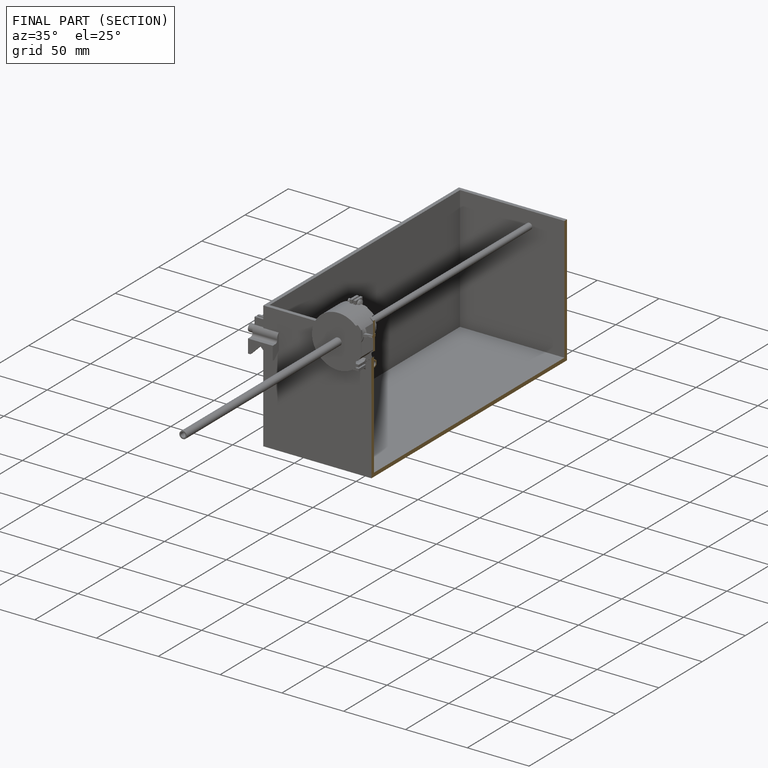
[diagram: finished part — half-section view (interior)]
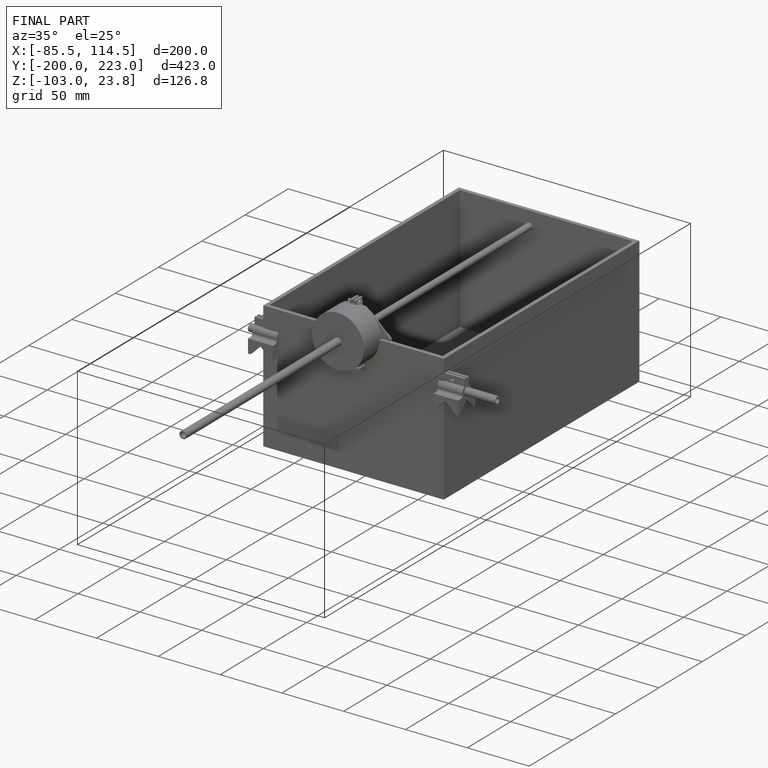
[diagram: finished part — iso view with bounding-box wireframe]
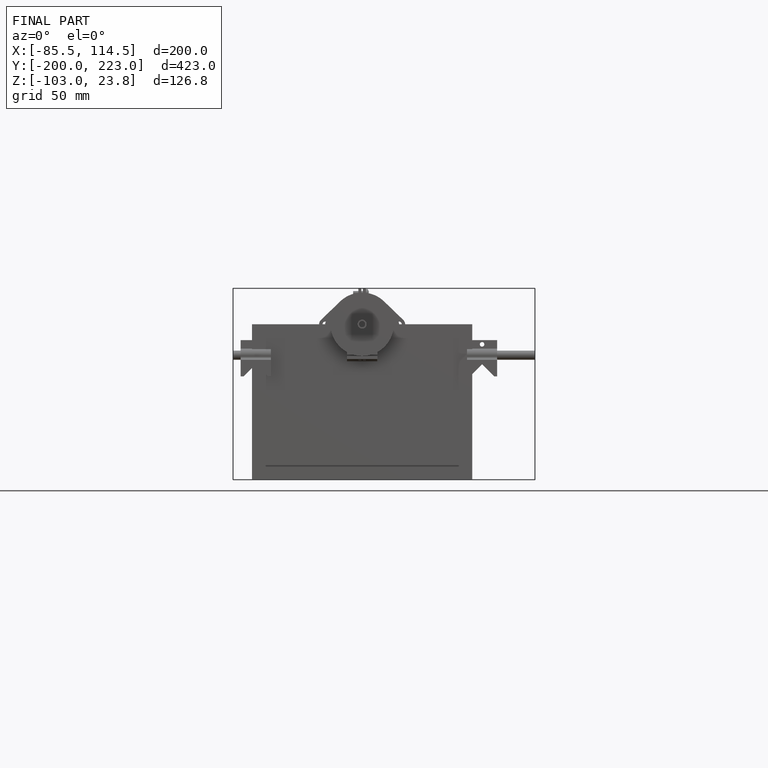
[diagram: finished part — front view with bounding-box wireframe]
